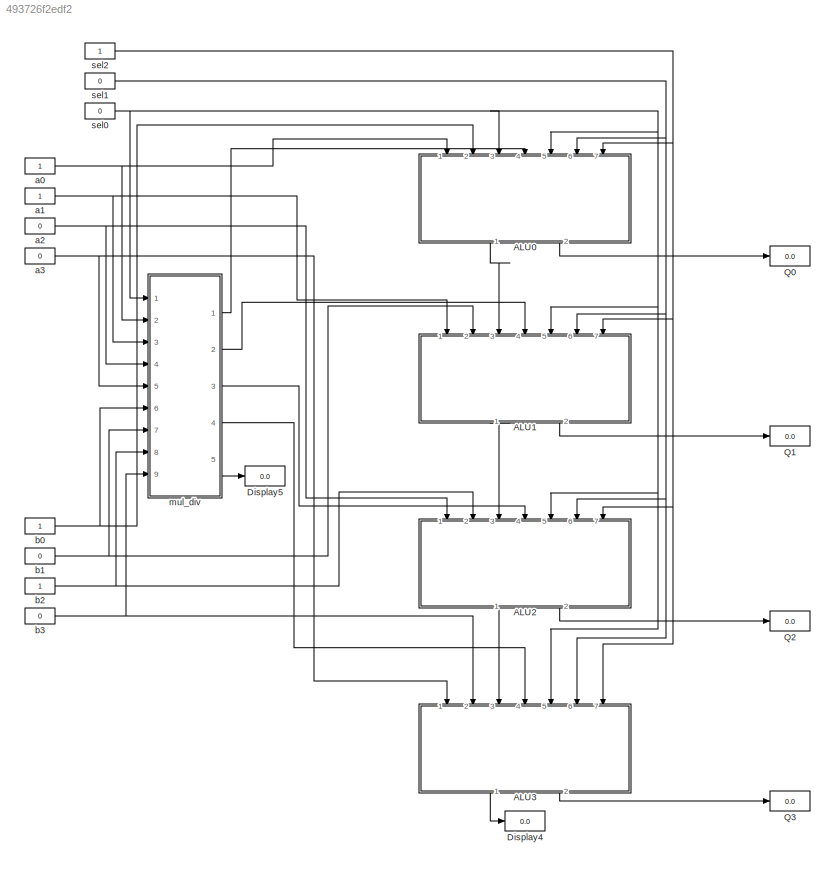
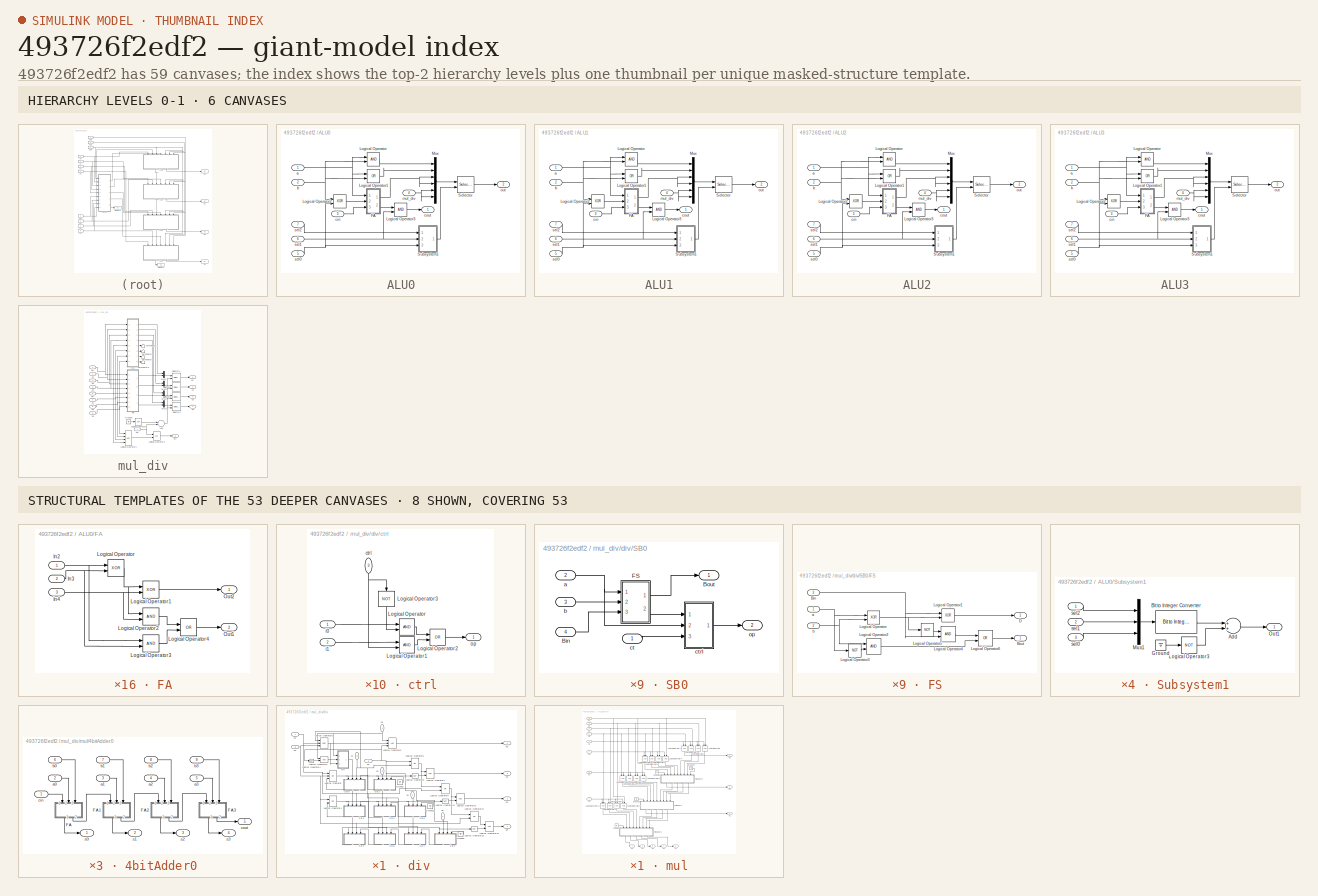
[diagram: thumbnail index - top-2 hierarchy levels (6 canvases) + 8 structural-template representatives of the remaining 53 canvases]
MODEL slx_493726f2edf2
KIND model
CONFIG AbsTol = auto
CONFIG EnableMultiTasking = off
CONFIG FixedStep = auto
CONFIG MaxStep = auto
CONFIG MinStep = auto
CONFIG RelTol = 1e-3
CONFIG SampleTimeConstraint = Unconstrained
CONFIG Solver = VariableStepAuto
CONFIG SolverName = VariableStepAuto
CONFIG StartTime = 0.0
CONFIG StopTime = 10.0
BLOCK [SubSystem] ALU0
  Ports = [7, 2]
  RequestExecContextInheritance = off
BLOCK [SubSystem] ALU0/FA
  Ports = [3, 2]
  RequestExecContextInheritance = off
BLOCK [Inport] ALU0/FA/In2
  IconDisplay = Port number
BLOCK [Inport] ALU0/FA/In3
  IconDisplay = Port number
  Port = 2
BLOCK [Inport] ALU0/FA/In4
  IconDisplay = Port number
  Port = 3
BLOCK [Logic] ALU0/FA/Logical Operator
  AllPortsSameDT = off
  IconShape = distinctive
  Operator = XOR
  OutDataTypeStr = boolean
  Ports = [2, 1]
BLOCK [Logic] ALU0/FA/Logical Operator1
  AllPortsSameDT = off
  IconShape = distinctive
  Operator = XOR
  OutDataTypeStr = boolean
  Ports = [2, 1]
BLOCK [Logic] ALU0/FA/Logical Operator2
  AllPortsSameDT = off
  IconShape = distinctive
  OutDataTypeStr = boolean
  Ports = [2, 1]
BLOCK [Logic] ALU0/FA/Logical Operator3
  AllPortsSameDT = off
  IconShape = distinctive
  OutDataTypeStr = boolean
  Ports = [2, 1]
BLOCK [Logic] ALU0/FA/Logical Operator4
  AllPortsSameDT = off
  IconShape = distinctive
  Operator = OR
  OutDataTypeStr = boolean
  Ports = [2, 1]
BLOCK [Outport] ALU0/FA/Out1
  IconDisplay = Port number
  Port = 2
BLOCK [Outport] ALU0/FA/Out2
  IconDisplay = Port number
BLOCK [Logic] ALU0/Logical Operator
  AllPortsSameDT = off
  IconShape = distinctive
  OutDataTypeStr = boolean
  Ports = [2, 1]
BLOCK [Logic] ALU0/Logical Operator1
  AllPortsSameDT = off
  IconShape = distinctive
  Operator = OR
  OutDataTypeStr = boolean
  Ports = [2, 1]
BLOCK [Logic] ALU0/Logical Operator2
  AllPortsSameDT = off
  IconShape = distinctive
  Operator = XOR
  OutDataTypeStr = boolean
  Ports = [2, 1]
BLOCK [Logic] ALU0/Logical Operator3
  AllPortsSameDT = off
  IconShape = distinctive
  OutDataTypeStr = boolean
  Ports = [2, 1]
BLOCK [Mux] ALU0/Mux
  DisplayOption = bar
  Inputs = 6
  Ports = [6, 1]
BLOCK [Selector] ALU0/Selector
  IndexOptions = Starting index (port)
  Indices = [1 3]
  InputPortWidth = 6
  OutputSizes = 1
  Ports = [2, 1]
BLOCK [SubSystem] ALU0/Subsystem1
  Ports = [3, 1]
  RequestExecContextInheritance = off
BLOCK [Sum] ALU0/Subsystem1/Add
  InputSameDT = off
  OutDataTypeStr = Inherit: Inherit via internal rule
  Ports = [2, 1]
  SaturateOnIntegerOverflow = off
BLOCK [Reference] ALU0/Subsystem1/Bit to Integer Converter  REF=commutil2/Bit to Integer
Converter
  Ports = [1, 1]
  SourceBlock = commutil2/Bit to Integer\nConverter
  SourceProductBaseCode = CM
  SourceProductName = Communications System Toolbox
  SourceType = Bit to Integer Converter
BLOCK [Ground] ALU0/Subsystem1/Ground
BLOCK [Logic] ALU0/Subsystem1/Logical Operator3
  AllPortsSameDT = off
  IconShape = distinctive
  Operator = NOT
  OutDataTypeStr = boolean
  Ports = [1, 1]
BLOCK [Mux] ALU0/Subsystem1/Mux1
  DisplayOption = bar
  Inputs = 3
  Ports = [3, 1]
BLOCK [Outport] ALU0/Subsystem1/Out1
  IconDisplay = Port number
BLOCK [Inport] ALU0/Subsystem1/sel0
  IconDisplay = Port number
  Port = 3
BLOCK [Inport] ALU0/Subsystem1/sel1
  IconDisplay = Port number
  Port = 2
BLOCK [Inport] ALU0/Subsystem1/sel2
  IconDisplay = Port number
BLOCK [Inport] ALU0/a
  IconDisplay = Port number
BLOCK [Inport] ALU0/b
  IconDisplay = Port number
  Port = 2
BLOCK [Inport] ALU0/cin
  IconDisplay = Port number
  Port = 3
BLOCK [Outport] ALU0/cout
  IconDisplay = Port number
BLOCK [Inport] ALU0/mul_div
  IconDisplay = Port number
  Port = 4
BLOCK [Outport] ALU0/out
  IconDisplay = Port number
  Port = 2
BLOCK [Inport] ALU0/sel0
  IconDisplay = Port number
  Port = 5
BLOCK [Inport] ALU0/sel1
  IconDisplay = Port number
  Port = 6
BLOCK [Inport] ALU0/sel2
  IconDisplay = Port number
  Port = 7
BLOCK [SubSystem] ALU1
  Ports = [7, 2]
  RequestExecContextInheritance = off
BLOCK [SubSystem] ALU1/FA
  Ports = [3, 2]
  RequestExecContextInheritance = off
BLOCK [Inport] ALU1/FA/In2
  IconDisplay = Port number
BLOCK [Inport] ALU1/FA/In3
  IconDisplay = Port number
  Port = 2
BLOCK [Inport] ALU1/FA/In4
  IconDisplay = Port number
  Port = 3
BLOCK [Logic] ALU1/FA/Logical Operator
  AllPortsSameDT = off
  IconShape = distinctive
  Operator = XOR
  OutDataTypeStr = boolean
  Ports = [2, 1]
BLOCK [Logic] ALU1/FA/Logical Operator1
  AllPortsSameDT = off
  IconShape = distinctive
  Operator = XOR
  OutDataTypeStr = boolean
  Ports = [2, 1]
BLOCK [Logic] ALU1/FA/Logical Operator2
  AllPortsSameDT = off
  IconShape = distinctive
  OutDataTypeStr = boolean
  Ports = [2, 1]
BLOCK [Logic] ALU1/FA/Logical Operator3
  AllPortsSameDT = off
  IconShape = distinctive
  OutDataTypeStr = boolean
  Ports = [2, 1]
BLOCK [Logic] ALU1/FA/Logical Operator4
  AllPortsSameDT = off
  IconShape = distinctive
  Operator = OR
  OutDataTypeStr = boolean
  Ports = [2, 1]
BLOCK [Outport] ALU1/FA/Out1
  IconDisplay = Port number
  Port = 2
BLOCK [Outport] ALU1/FA/Out2
  IconDisplay = Port number
BLOCK [Logic] ALU1/Logical Operator
  AllPortsSameDT = off
  IconShape = distinctive
  OutDataTypeStr = boolean
  Ports = [2, 1]
BLOCK [Logic] ALU1/Logical Operator1
  AllPortsSameDT = off
  IconShape = distinctive
  Operator = OR
  OutDataTypeStr = boolean
  Ports = [2, 1]
BLOCK [Logic] ALU1/Logical Operator2
  AllPortsSameDT = off
  IconShape = distinctive
  Operator = XOR
  OutDataTypeStr = boolean
  Ports = [2, 1]
BLOCK [Logic] ALU1/Logical Operator3
  AllPortsSameDT = off
  IconShape = distinctive
  OutDataTypeStr = boolean
  Ports = [2, 1]
BLOCK [Mux] ALU1/Mux
  DisplayOption = bar
  Inputs = 6
  Ports = [6, 1]
BLOCK [Selector] ALU1/Selector
  IndexOptions = Starting index (port)
  Indices = [1 3]
  InputPortWidth = 6
  OutputSizes = 1
  Ports = [2, 1]
BLOCK [SubSystem] ALU1/Subsystem1
  Ports = [3, 1]
  RequestExecContextInheritance = off
BLOCK [Sum] ALU1/Subsystem1/Add
  InputSameDT = off
  OutDataTypeStr = Inherit: Inherit via internal rule
  Ports = [2, 1]
  SaturateOnIntegerOverflow = off
BLOCK [Reference] ALU1/Subsystem1/Bit to Integer Converter  REF=commutil2/Bit to Integer
Converter
  Ports = [1, 1]
  SourceBlock = commutil2/Bit to Integer\nConverter
  SourceProductBaseCode = CM
  SourceProductName = Communications System Toolbox
  SourceType = Bit to Integer Converter
BLOCK [Ground] ALU1/Subsystem1/Ground
BLOCK [Logic] ALU1/Subsystem1/Logical Operator3
  AllPortsSameDT = off
  IconShape = distinctive
  Operator = NOT
  OutDataTypeStr = boolean
  Ports = [1, 1]
BLOCK [Mux] ALU1/Subsystem1/Mux1
  DisplayOption = bar
  Inputs = 3
  Ports = [3, 1]
BLOCK [Outport] ALU1/Subsystem1/Out1
  IconDisplay = Port number
BLOCK [Inport] ALU1/Subsystem1/sel0
  IconDisplay = Port number
  Port = 3
BLOCK [Inport] ALU1/Subsystem1/sel1
  IconDisplay = Port number
  Port = 2
BLOCK [Inport] ALU1/Subsystem1/sel2
  IconDisplay = Port number
BLOCK [Inport] ALU1/a
  IconDisplay = Port number
BLOCK [Inport] ALU1/b
  IconDisplay = Port number
  Port = 2
BLOCK [Inport] ALU1/cin
  IconDisplay = Port number
  Port = 3
BLOCK [Outport] ALU1/cout
  IconDisplay = Port number
BLOCK [Inport] ALU1/mul_div
  IconDisplay = Port number
  Port = 4
BLOCK [Outport] ALU1/out
  IconDisplay = Port number
  Port = 2
BLOCK [Inport] ALU1/sel0
  IconDisplay = Port number
  Port = 5
BLOCK [Inport] ALU1/sel1
  IconDisplay = Port number
  Port = 6
BLOCK [Inport] ALU1/sel2
  IconDisplay = Port number
  Port = 7
BLOCK [SubSystem] ALU2
  Ports = [7, 2]
  RequestExecContextInheritance = off
BLOCK [SubSystem] ALU2/FA
  Ports = [3, 2]
  RequestExecContextInheritance = off
BLOCK [Inport] ALU2/FA/In2
  IconDisplay = Port number
BLOCK [Inport] ALU2/FA/In3
  IconDisplay = Port number
  Port = 2
BLOCK [Inport] ALU2/FA/In4
  IconDisplay = Port number
  Port = 3
BLOCK [Logic] ALU2/FA/Logical Operator
  AllPortsSameDT = off
  IconShape = distinctive
  Operator = XOR
  OutDataTypeStr = boolean
  Ports = [2, 1]
BLOCK [Logic] ALU2/FA/Logical Operator1
  AllPortsSameDT = off
  IconShape = distinctive
  Operator = XOR
  OutDataTypeStr = boolean
  Ports = [2, 1]
BLOCK [Logic] ALU2/FA/Logical Operator2
  AllPortsSameDT = off
  IconShape = distinctive
  OutDataTypeStr = boolean
  Ports = [2, 1]
BLOCK [Logic] ALU2/FA/Logical Operator3
  AllPortsSameDT = off
  IconShape = distinctive
  OutDataTypeStr = boolean
  Ports = [2, 1]
BLOCK [Logic] ALU2/FA/Logical Operator4
  AllPortsSameDT = off
  IconShape = distinctive
  Operator = OR
  OutDataTypeStr = boolean
  Ports = [2, 1]
BLOCK [Outport] ALU2/FA/Out1
  IconDisplay = Port number
  Port = 2
BLOCK [Outport] ALU2/FA/Out2
  IconDisplay = Port number
BLOCK [Logic] ALU2/Logical Operator
  AllPortsSameDT = off
  IconShape = distinctive
  OutDataTypeStr = boolean
  Ports = [2, 1]
BLOCK [Logic] ALU2/Logical Operator1
  AllPortsSameDT = off
  IconShape = distinctive
  Operator = OR
  OutDataTypeStr = boolean
  Ports = [2, 1]
BLOCK [Logic] ALU2/Logical Operator2
  AllPortsSameDT = off
  IconShape = distinctive
  Operator = XOR
  OutDataTypeStr = boolean
  Ports = [2, 1]
BLOCK [Logic] ALU2/Logical Operator3
  AllPortsSameDT = off
  IconShape = distinctive
  OutDataTypeStr = boolean
  Ports = [2, 1]
BLOCK [Mux] ALU2/Mux
  DisplayOption = bar
  Inputs = 6
  Ports = [6, 1]
BLOCK [Selector] ALU2/Selector
  IndexOptions = Starting index (port)
  Indices = [1 3]
  InputPortWidth = 6
  OutputSizes = 1
  Ports = [2, 1]
BLOCK [SubSystem] ALU2/Subsystem1
  Ports = [3, 1]
  RequestExecContextInheritance = off
BLOCK [Sum] ALU2/Subsystem1/Add
  InputSameDT = off
  OutDataTypeStr = Inherit: Inherit via internal rule
  Ports = [2, 1]
  SaturateOnIntegerOverflow = off
BLOCK [Reference] ALU2/Subsystem1/Bit to Integer Converter  REF=commutil2/Bit to Integer
Converter
  Ports = [1, 1]
  SourceBlock = commutil2/Bit to Integer\nConverter
  SourceProductBaseCode = CM
  SourceProductName = Communications System Toolbox
  SourceType = Bit to Integer Converter
BLOCK [Ground] ALU2/Subsystem1/Ground
BLOCK [Logic] ALU2/Subsystem1/Logical Operator3
  AllPortsSameDT = off
  IconShape = distinctive
  Operator = NOT
  OutDataTypeStr = boolean
  Ports = [1, 1]
BLOCK [Mux] ALU2/Subsystem1/Mux1
  DisplayOption = bar
  Inputs = 3
  Ports = [3, 1]
BLOCK [Outport] ALU2/Subsystem1/Out1
  IconDisplay = Port number
BLOCK [Inport] ALU2/Subsystem1/sel0
  IconDisplay = Port number
  Port = 3
BLOCK [Inport] ALU2/Subsystem1/sel1
  IconDisplay = Port number
  Port = 2
BLOCK [Inport] ALU2/Subsystem1/sel2
  IconDisplay = Port number
BLOCK [Inport] ALU2/a
  IconDisplay = Port number
BLOCK [Inport] ALU2/b
  IconDisplay = Port number
  Port = 2
BLOCK [Inport] ALU2/cin
  IconDisplay = Port number
  Port = 3
BLOCK [Outport] ALU2/cout
  IconDisplay = Port number
BLOCK [Inport] ALU2/mul_div
  IconDisplay = Port number
  Port = 4
BLOCK [Outport] ALU2/out
  IconDisplay = Port number
  Port = 2
BLOCK [Inport] ALU2/sel0
  IconDisplay = Port number
  Port = 5
BLOCK [Inport] ALU2/sel1
  IconDisplay = Port number
  Port = 6
BLOCK [Inport] ALU2/sel2
  IconDisplay = Port number
  Port = 7
BLOCK [SubSystem] ALU3
  Ports = [7, 2]
  RequestExecContextInheritance = off
BLOCK [SubSystem] ALU3/FA
  Ports = [3, 2]
  RequestExecContextInheritance = off
BLOCK [Inport] ALU3/FA/In2
  IconDisplay = Port number
BLOCK [Inport] ALU3/FA/In3
  IconDisplay = Port number
  Port = 2
BLOCK [Inport] ALU3/FA/In4
  IconDisplay = Port number
  Port = 3
BLOCK [Logic] ALU3/FA/Logical Operator
  AllPortsSameDT = off
  IconShape = distinctive
  Operator = XOR
  OutDataTypeStr = boolean
  Ports = [2, 1]
BLOCK [Logic] ALU3/FA/Logical Operator1
  AllPortsSameDT = off
  IconShape = distinctive
  Operator = XOR
  OutDataTypeStr = boolean
  Ports = [2, 1]
BLOCK [Logic] ALU3/FA/Logical Operator2
  AllPortsSameDT = off
  IconShape = distinctive
  OutDataTypeStr = boolean
  Ports = [2, 1]
BLOCK [Logic] ALU3/FA/Logical Operator3
  AllPortsSameDT = off
  IconShape = distinctive
  OutDataTypeStr = boolean
  Ports = [2, 1]
BLOCK [Logic] ALU3/FA/Logical Operator4
  AllPortsSameDT = off
  IconShape = distinctive
  Operator = OR
  OutDataTypeStr = boolean
  Ports = [2, 1]
BLOCK [Outport] ALU3/FA/Out1
  IconDisplay = Port number
  Port = 2
BLOCK [Outport] ALU3/FA/Out2
  IconDisplay = Port number
BLOCK [Logic] ALU3/Logical Operator
  AllPortsSameDT = off
  IconShape = distinctive
  OutDataTypeStr = boolean
  Ports = [2, 1]
BLOCK [Logic] ALU3/Logical Operator1
  AllPortsSameDT = off
  IconShape = distinctive
  Operator = OR
  OutDataTypeStr = boolean
  Ports = [2, 1]
BLOCK [Logic] ALU3/Logical Operator2
  AllPortsSameDT = off
  IconShape = distinctive
  Operator = XOR
  OutDataTypeStr = boolean
  Ports = [2, 1]
BLOCK [Logic] ALU3/Logical Operator3
  AllPortsSameDT = off
  IconShape = distinctive
  OutDataTypeStr = boolean
  Ports = [2, 1]
BLOCK [Mux] ALU3/Mux
  DisplayOption = bar
  Inputs = 6
  Ports = [6, 1]
BLOCK [Selector] ALU3/Selector
  IndexOptions = Starting index (port)
  Indices = [1 3]
  InputPortWidth = 6
  OutputSizes = 1
  Ports = [2, 1]
BLOCK [SubSystem] ALU3/Subsystem1
  Ports = [3, 1]
  RequestExecContextInheritance = off
BLOCK [Sum] ALU3/Subsystem1/Add
  InputSameDT = off
  OutDataTypeStr = Inherit: Inherit via internal rule
  Ports = [2, 1]
  SaturateOnIntegerOverflow = off
BLOCK [Reference] ALU3/Subsystem1/Bit to Integer Converter  REF=commutil2/Bit to Integer
Converter
  Ports = [1, 1]
  SourceBlock = commutil2/Bit to Integer\nConverter
  SourceProductBaseCode = CM
  SourceProductName = Communications System Toolbox
  SourceType = Bit to Integer Converter
BLOCK [Ground] ALU3/Subsystem1/Ground
BLOCK [Logic] ALU3/Subsystem1/Logical Operator3
  AllPortsSameDT = off
  IconShape = distinctive
  Operator = NOT
  OutDataTypeStr = boolean
  Ports = [1, 1]
BLOCK [Mux] ALU3/Subsystem1/Mux1
  DisplayOption = bar
  Inputs = 3
  Ports = [3, 1]
BLOCK [Outport] ALU3/Subsystem1/Out1
  IconDisplay = Port number
BLOCK [Inport] ALU3/Subsystem1/sel0
  IconDisplay = Port number
  Port = 3
BLOCK [Inport] ALU3/Subsystem1/sel1
  IconDisplay = Port number
  Port = 2
BLOCK [Inport] ALU3/Subsystem1/sel2
  IconDisplay = Port number
BLOCK [Inport] ALU3/a
  IconDisplay = Port number
BLOCK [Inport] ALU3/b
  IconDisplay = Port number
  Port = 2
BLOCK [Inport] ALU3/cin
  IconDisplay = Port number
  Port = 3
BLOCK [Outport] ALU3/cout
  IconDisplay = Port number
BLOCK [Inport] ALU3/mul_div
  IconDisplay = Port number
  Port = 4
BLOCK [Outport] ALU3/out
  IconDisplay = Port number
  Port = 2
BLOCK [Inport] ALU3/sel0
  IconDisplay = Port number
  Port = 5
BLOCK [Inport] ALU3/sel1
  IconDisplay = Port number
  Port = 6
BLOCK [Inport] ALU3/sel2
  IconDisplay = Port number
  Port = 7
BLOCK [Display] Display4
  Decimation = 1
  Ports = [1]
BLOCK [Display] Display5
  Decimation = 1
  Ports = [1]
BLOCK [Display] Q0
  Decimation = 1
  Ports = [1]
BLOCK [Display] Q1
  Decimation = 1
  Ports = [1]
BLOCK [Display] Q2
  Decimation = 1
  Ports = [1]
BLOCK [Display] Q3
  Decimation = 1
  Ports = [1]
BLOCK [Constant] a0
BLOCK [Constant] a1
BLOCK [Constant] a2
  Value = 0
BLOCK [Constant] a3
  Value = 0
BLOCK [Constant] b0
BLOCK [Constant] b1
  Value = 0
BLOCK [Constant] b2
BLOCK [Constant] b3
  Value = 0
BLOCK [SubSystem] mul_div
  Ports = [9, 5]
  RequestExecContextInheritance = off
BLOCK [Sum] mul_div/Add
  InputSameDT = off
  OutDataTypeStr = Inherit: Inherit via internal rule
  Ports = [2, 1]
  SaturateOnIntegerOverflow = off
BLOCK [Ground] mul_div/Ground
BLOCK [Logic] mul_div/Logical Operator
  AllPortsSameDT = off
  IconShape = distinctive
  Operator = NOT
  OutDataTypeStr = boolean
  Ports = [1, 1]
BLOCK [Logic] mul_div/Logical Operator1
  AllPortsSameDT = off
  IconShape = distinctive
  Inputs = 4
  Operator = NOR
  OutDataTypeStr = boolean
  Ports = [4, 1]
BLOCK [Logic] mul_div/Logical Operator2
  AllPortsSameDT = off
  IconShape = distinctive
  OutDataTypeStr = boolean
  Ports = [2, 1]
BLOCK [Mux] mul_div/Mux1
  DisplayOption = bar
  Inputs = 2
  Ports = [2, 1]
BLOCK [Mux] mul_div/Mux2
  DisplayOption = bar
  Inputs = 2
  Ports = [2, 1]
BLOCK [Mux] mul_div/Mux3
  DisplayOption = bar
  Inputs = 2
  Ports = [2, 1]
BLOCK [Mux] mul_div/Mux4
  DisplayOption = bar
  Inputs = 2
  Ports = [2, 1]
BLOCK [Selector] mul_div/Selector1
  IndexOptions = Starting index (port)
  Indices = [1 3]
  InputPortWidth = 2
  OutputSizes = 1
  Ports = [2, 1]
BLOCK [Selector] mul_div/Selector2
  IndexOptions = Starting index (port)
  Indices = [1 3]
  InputPortWidth = 2
  OutputSizes = 1
  Ports = [2, 1]
BLOCK [Selector] mul_div/Selector3
  IndexOptions = Starting index (port)
  Indices = [1 3]
  InputPortWidth = 2
  OutputSizes = 1
  Ports = [2, 1]
BLOCK [Selector] mul_div/Selector4
  IndexOptions = Starting index (port)
  Indices = [1 3]
  InputPortWidth = 2
  OutputSizes = 1
  Ports = [2, 1]
BLOCK [Terminator] mul_div/Terminator
BLOCK [Terminator] mul_div/Terminator1
BLOCK [Terminator] mul_div/Terminator2
BLOCK [Terminator] mul_div/Terminator3
BLOCK [Inport] mul_div/a0
  IconDisplay = Port number
  Port = 2
BLOCK [Inport] mul_div/a1
  IconDisplay = Port number
  Port = 3
BLOCK [Inport] mul_div/a2
  IconDisplay = Port number
  Port = 4
BLOCK [Inport] mul_div/a3
  IconDisplay = Port number
  Port = 5
BLOCK [Inport] mul_div/b0
  IconDisplay = Port number
  Port = 6
BLOCK [Inport] mul_div/b1
  IconDisplay = Port number
  Port = 7
BLOCK [Inport] mul_div/b2
  IconDisplay = Port number
  Port = 8
BLOCK [Inport] mul_div/b3
  IconDisplay = Port number
  Port = 9
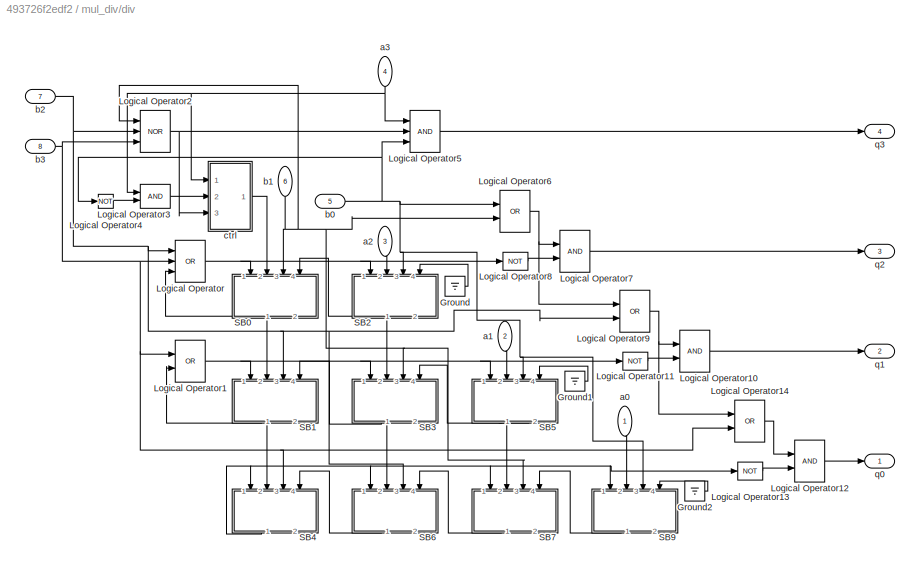
BLOCK [SubSystem] mul_div/div
  Ports = [8, 4]
  RequestExecContextInheritance = off
BLOCK [Ground] mul_div/div/Ground
BLOCK [Ground] mul_div/div/Ground1
BLOCK [Ground] mul_div/div/Ground2
BLOCK [Logic] mul_div/div/Logical Operator
  AllPortsSameDT = off
  IconShape = distinctive
  Inputs = 3
  Operator = OR
  OutDataTypeStr = boolean
  Ports = [3, 1]
BLOCK [Logic] mul_div/div/Logical Operator1
  AllPortsSameDT = off
  IconShape = distinctive
  Operator = OR
  OutDataTypeStr = boolean
  Ports = [2, 1]
BLOCK [Logic] mul_div/div/Logical Operator10
  AllPortsSameDT = off
  IconShape = distinctive
  OutDataTypeStr = boolean
  Ports = [2, 1]
BLOCK [Logic] mul_div/div/Logical Operator11
  AllPortsSameDT = off
  IconShape = distinctive
  Operator = NOT
  OutDataTypeStr = boolean
  Ports = [1, 1]
BLOCK [Logic] mul_div/div/Logical Operator12
  AllPortsSameDT = off
  IconShape = distinctive
  OutDataTypeStr = boolean
  Ports = [2, 1]
BLOCK [Logic] mul_div/div/Logical Operator13
  AllPortsSameDT = off
  IconShape = distinctive
  Operator = NOT
  OutDataTypeStr = boolean
  Ports = [1, 1]
BLOCK [Logic] mul_div/div/Logical Operator14
  AllPortsSameDT = off
  IconShape = distinctive
  Operator = OR
  OutDataTypeStr = boolean
  Ports = [2, 1]
BLOCK [Logic] mul_div/div/Logical Operator2
  AllPortsSameDT = off
  IconShape = distinctive
  Inputs = 3
  Operator = NOR
  OutDataTypeStr = boolean
  Ports = [3, 1]
BLOCK [Logic] mul_div/div/Logical Operator3
  AllPortsSameDT = off
  IconShape = distinctive
  OutDataTypeStr = boolean
  Ports = [2, 1]
BLOCK [Logic] mul_div/div/Logical Operator4
  AllPortsSameDT = off
  IconShape = distinctive
  Operator = NOT
  OutDataTypeStr = boolean
  Ports = [1, 1]
BLOCK [Logic] mul_div/div/Logical Operator5
  AllPortsSameDT = off
  IconShape = distinctive
  Inputs = 3
  OutDataTypeStr = boolean
  Ports = [3, 1]
BLOCK [Logic] mul_div/div/Logical Operator6
  AllPortsSameDT = off
  IconShape = distinctive
  Operator = OR
  OutDataTypeStr = boolean
  Ports = [2, 1]
BLOCK [Logic] mul_div/div/Logical Operator7
  AllPortsSameDT = off
  IconShape = distinctive
  OutDataTypeStr = boolean
  Ports = [2, 1]
BLOCK [Logic] mul_div/div/Logical Operator8
  AllPortsSameDT = off
  IconShape = distinctive
  Operator = NOT
  OutDataTypeStr = boolean
  Ports = [1, 1]
BLOCK [Logic] mul_div/div/Logical Operator9
  AllPortsSameDT = off
  IconShape = distinctive
  Operator = OR
  OutDataTypeStr = boolean
  Ports = [2, 1]
BLOCK [SubSystem] mul_div/div/SB0
  Ports = [4, 2]
  RequestExecContextInheritance = off
BLOCK [Inport] mul_div/div/SB0/Bin
  IconDisplay = Port number
  Port = 4
BLOCK [Outport] mul_div/div/SB0/Bout
  IconDisplay = Port number
BLOCK [SubSystem] mul_div/div/SB0/FS
  Ports = [3, 2]
  RequestExecContextInheritance = off
BLOCK [Inport] mul_div/div/SB0/FS/Bin
  IconDisplay = Port number
  Port = 3
BLOCK [Outport] mul_div/div/SB0/FS/Bout
  IconDisplay = Port number
BLOCK [Outport] mul_div/div/SB0/FS/D
  IconDisplay = Port number
  Port = 2
BLOCK [Logic] mul_div/div/SB0/FS/Logical Operator
  AllPortsSameDT = off
  IconShape = distinctive
  Operator = XOR
  OutDataTypeStr = boolean
  Ports = [2, 1]
BLOCK [Logic] mul_div/div/SB0/FS/Logical Operator1
  AllPortsSameDT = off
  IconShape = distinctive
  Operator = XOR
  OutDataTypeStr = boolean
  Ports = [2, 1]
BLOCK [Logic] mul_div/div/SB0/FS/Logical Operator2
  AllPortsSameDT = off
  IconShape = distinctive
  OutDataTypeStr = boolean
  Ports = [2, 1]
BLOCK [Logic] mul_div/div/SB0/FS/Logical Operator3
  AllPortsSameDT = off
  IconShape = distinctive
  Operator = NOT
  OutDataTypeStr = boolean
  Ports = [1, 1]
BLOCK [Logic] mul_div/div/SB0/FS/Logical Operator4
  AllPortsSameDT = off
  IconShape = distinctive
  OutDataTypeStr = boolean
  Ports = [2, 1]
BLOCK [Logic] mul_div/div/SB0/FS/Logical Operator5
  AllPortsSameDT = off
  IconShape = distinctive
  Operator = NOT
  OutDataTypeStr = boolean
  Ports = [1, 1]
BLOCK [Logic] mul_div/div/SB0/FS/Logical Operator6
  AllPortsSameDT = off
  IconShape = distinctive
  Operator = OR
  OutDataTypeStr = boolean
  Ports = [2, 1]
BLOCK [Inport] mul_div/div/SB0/FS/a
  IconDisplay = Port number
BLOCK [Inport] mul_div/div/SB0/FS/b
  IconDisplay = Port number
  Port = 2
BLOCK [Inport] mul_div/div/SB0/a
  IconDisplay = Port number
  Port = 2
BLOCK [Inport] mul_div/div/SB0/b
  IconDisplay = Port number
  Port = 3
BLOCK [Inport] mul_div/div/SB0/ct
  IconDisplay = Port number
BLOCK [SubSystem] mul_div/div/SB0/ctrl
  Ports = [3, 1]
  RequestExecContextInheritance = off
BLOCK [Logic] mul_div/div/SB0/ctrl/Logical Operator
  AllPortsSameDT = off
  IconShape = distinctive
  OutDataTypeStr = boolean
  Ports = [2, 1]
BLOCK [Logic] mul_div/div/SB0/ctrl/Logical Operator1
  AllPortsSameDT = off
  IconShape = distinctive
  OutDataTypeStr = boolean
  Ports = [2, 1]
BLOCK [Logic] mul_div/div/SB0/ctrl/Logical Operator2
  AllPortsSameDT = off
  IconShape = distinctive
  Operator = OR
  OutDataTypeStr = boolean
  Ports = [2, 1]
BLOCK [Logic] mul_div/div/SB0/ctrl/Logical Operator3
  AllPortsSameDT = off
  IconShape = distinctive
  Operator = NOT
  OutDataTypeStr = boolean
  Ports = [1, 1]
BLOCK [Inport] mul_div/div/SB0/ctrl/ctrl
  IconDisplay = Port number
  Port = 3
BLOCK [Inport] mul_div/div/SB0/ctrl/i0
  IconDisplay = Port number
BLOCK [Inport] mul_div/div/SB0/ctrl/i1
  IconDisplay = Port number
  Port = 2
BLOCK [Outport] mul_div/div/SB0/ctrl/op
  IconDisplay = Port number
BLOCK [Outport] mul_div/div/SB0/op
  IconDisplay = Port number
  Port = 2
BLOCK [SubSystem] mul_div/div/SB1
  Ports = [4, 2]
  RequestExecContextInheritance = off
BLOCK [Inport] mul_div/div/SB1/Bin
  IconDisplay = Port number
  Port = 4
BLOCK [Outport] mul_div/div/SB1/Bout
  IconDisplay = Port number
BLOCK [SubSystem] mul_div/div/SB1/FS
  Ports = [3, 2]
  RequestExecContextInheritance = off
BLOCK [Inport] mul_div/div/SB1/FS/Bin
  IconDisplay = Port number
  Port = 3
BLOCK [Outport] mul_div/div/SB1/FS/Bout
  IconDisplay = Port number
BLOCK [Outport] mul_div/div/SB1/FS/D
  IconDisplay = Port number
  Port = 2
BLOCK [Logic] mul_div/div/SB1/FS/Logical Operator
  AllPortsSameDT = off
  IconShape = distinctive
  Operator = XOR
  OutDataTypeStr = boolean
  Ports = [2, 1]
BLOCK [Logic] mul_div/div/SB1/FS/Logical Operator1
  AllPortsSameDT = off
  IconShape = distinctive
  Operator = XOR
  OutDataTypeStr = boolean
  Ports = [2, 1]
BLOCK [Logic] mul_div/div/SB1/FS/Logical Operator2
  AllPortsSameDT = off
  IconShape = distinctive
  OutDataTypeStr = boolean
  Ports = [2, 1]
BLOCK [Logic] mul_div/div/SB1/FS/Logical Operator3
  AllPortsSameDT = off
  IconShape = distinctive
  Operator = NOT
  OutDataTypeStr = boolean
  Ports = [1, 1]
BLOCK [Logic] mul_div/div/SB1/FS/Logical Operator4
  AllPortsSameDT = off
  IconShape = distinctive
  OutDataTypeStr = boolean
  Ports = [2, 1]
BLOCK [Logic] mul_div/div/SB1/FS/Logical Operator5
  AllPortsSameDT = off
  IconShape = distinctive
  Operator = NOT
  OutDataTypeStr = boolean
  Ports = [1, 1]
BLOCK [Logic] mul_div/div/SB1/FS/Logical Operator6
  AllPortsSameDT = off
  IconShape = distinctive
  Operator = OR
  OutDataTypeStr = boolean
  Ports = [2, 1]
BLOCK [Inport] mul_div/div/SB1/FS/a
  IconDisplay = Port number
BLOCK [Inport] mul_div/div/SB1/FS/b
  IconDisplay = Port number
  Port = 2
BLOCK [Inport] mul_div/div/SB1/a
  IconDisplay = Port number
  Port = 2
BLOCK [Inport] mul_div/div/SB1/b
  IconDisplay = Port number
  Port = 3
BLOCK [Inport] mul_div/div/SB1/ct
  IconDisplay = Port number
BLOCK [SubSystem] mul_div/div/SB1/ctrl
  Ports = [3, 1]
  RequestExecContextInheritance = off
BLOCK [Logic] mul_div/div/SB1/ctrl/Logical Operator
  AllPortsSameDT = off
  IconShape = distinctive
  OutDataTypeStr = boolean
  Ports = [2, 1]
BLOCK [Logic] mul_div/div/SB1/ctrl/Logical Operator1
  AllPortsSameDT = off
  IconShape = distinctive
  OutDataTypeStr = boolean
  Ports = [2, 1]
BLOCK [Logic] mul_div/div/SB1/ctrl/Logical Operator2
  AllPortsSameDT = off
  IconShape = distinctive
  Operator = OR
  OutDataTypeStr = boolean
  Ports = [2, 1]
BLOCK [Logic] mul_div/div/SB1/ctrl/Logical Operator3
  AllPortsSameDT = off
  IconShape = distinctive
  Operator = NOT
  OutDataTypeStr = boolean
  Ports = [1, 1]
BLOCK [Inport] mul_div/div/SB1/ctrl/ctrl
  IconDisplay = Port number
  Port = 3
BLOCK [Inport] mul_div/div/SB1/ctrl/i0
  IconDisplay = Port number
BLOCK [Inport] mul_div/div/SB1/ctrl/i1
  IconDisplay = Port number
  Port = 2
BLOCK [Outport] mul_div/div/SB1/ctrl/op
  IconDisplay = Port number
BLOCK [Outport] mul_div/div/SB1/op
  IconDisplay = Port number
  Port = 2
BLOCK [SubSystem] mul_div/div/SB2
  Ports = [4, 2]
  RequestExecContextInheritance = off
BLOCK [Inport] mul_div/div/SB2/Bin
  IconDisplay = Port number
  Port = 4
BLOCK [Outport] mul_div/div/SB2/Bout
  IconDisplay = Port number
BLOCK [SubSystem] mul_div/div/SB2/FS
  Ports = [3, 2]
  RequestExecContextInheritance = off
BLOCK [Inport] mul_div/div/SB2/FS/Bin
  IconDisplay = Port number
  Port = 3
BLOCK [Outport] mul_div/div/SB2/FS/Bout
  IconDisplay = Port number
BLOCK [Outport] mul_div/div/SB2/FS/D
  IconDisplay = Port number
  Port = 2
BLOCK [Logic] mul_div/div/SB2/FS/Logical Operator
  AllPortsSameDT = off
  IconShape = distinctive
  Operator = XOR
  OutDataTypeStr = boolean
  Ports = [2, 1]
BLOCK [Logic] mul_div/div/SB2/FS/Logical Operator1
  AllPortsSameDT = off
  IconShape = distinctive
  Operator = XOR
  OutDataTypeStr = boolean
  Ports = [2, 1]
BLOCK [Logic] mul_div/div/SB2/FS/Logical Operator2
  AllPortsSameDT = off
  IconShape = distinctive
  OutDataTypeStr = boolean
  Ports = [2, 1]
BLOCK [Logic] mul_div/div/SB2/FS/Logical Operator3
  AllPortsSameDT = off
  IconShape = distinctive
  Operator = NOT
  OutDataTypeStr = boolean
  Ports = [1, 1]
BLOCK [Logic] mul_div/div/SB2/FS/Logical Operator4
  AllPortsSameDT = off
  IconShape = distinctive
  OutDataTypeStr = boolean
  Ports = [2, 1]
BLOCK [Logic] mul_div/div/SB2/FS/Logical Operator5
  AllPortsSameDT = off
  IconShape = distinctive
  Operator = NOT
  OutDataTypeStr = boolean
  Ports = [1, 1]
BLOCK [Logic] mul_div/div/SB2/FS/Logical Operator6
  AllPortsSameDT = off
  IconShape = distinctive
  Operator = OR
  OutDataTypeStr = boolean
  Ports = [2, 1]
BLOCK [Inport] mul_div/div/SB2/FS/a
  IconDisplay = Port number
BLOCK [Inport] mul_div/div/SB2/FS/b
  IconDisplay = Port number
  Port = 2
BLOCK [Inport] mul_div/div/SB2/a
  IconDisplay = Port number
  Port = 2
BLOCK [Inport] mul_div/div/SB2/b
  IconDisplay = Port number
  Port = 3
BLOCK [Inport] mul_div/div/SB2/ct
  IconDisplay = Port number
BLOCK [SubSystem] mul_div/div/SB2/ctrl
  Ports = [3, 1]
  RequestExecContextInheritance = off
BLOCK [Logic] mul_div/div/SB2/ctrl/Logical Operator
  AllPortsSameDT = off
  IconShape = distinctive
  OutDataTypeStr = boolean
  Ports = [2, 1]
BLOCK [Logic] mul_div/div/SB2/ctrl/Logical Operator1
  AllPortsSameDT = off
  IconShape = distinctive
  OutDataTypeStr = boolean
  Ports = [2, 1]
BLOCK [Logic] mul_div/div/SB2/ctrl/Logical Operator2
  AllPortsSameDT = off
  IconShape = distinctive
  Operator = OR
  OutDataTypeStr = boolean
  Ports = [2, 1]
BLOCK [Logic] mul_div/div/SB2/ctrl/Logical Operator3
  AllPortsSameDT = off
  IconShape = distinctive
  Operator = NOT
  OutDataTypeStr = boolean
  Ports = [1, 1]
BLOCK [Inport] mul_div/div/SB2/ctrl/ctrl
  IconDisplay = Port number
  Port = 3
BLOCK [Inport] mul_div/div/SB2/ctrl/i0
  IconDisplay = Port number
BLOCK [Inport] mul_div/div/SB2/ctrl/i1
  IconDisplay = Port number
  Port = 2
BLOCK [Outport] mul_div/div/SB2/ctrl/op
  IconDisplay = Port number
BLOCK [Outport] mul_div/div/SB2/op
  IconDisplay = Port number
  Port = 2
BLOCK [SubSystem] mul_div/div/SB3
  Ports = [4, 2]
  RequestExecContextInheritance = off
BLOCK [Inport] mul_div/div/SB3/Bin
  IconDisplay = Port number
  Port = 4
BLOCK [Outport] mul_div/div/SB3/Bout
  IconDisplay = Port number
BLOCK [SubSystem] mul_div/div/SB3/FS
  Ports = [3, 2]
  RequestExecContextInheritance = off
BLOCK [Inport] mul_div/div/SB3/FS/Bin
  IconDisplay = Port number
  Port = 3
BLOCK [Outport] mul_div/div/SB3/FS/Bout
  IconDisplay = Port number
BLOCK [Outport] mul_div/div/SB3/FS/D
  IconDisplay = Port number
  Port = 2
BLOCK [Logic] mul_div/div/SB3/FS/Logical Operator
  AllPortsSameDT = off
  IconShape = distinctive
  Operator = XOR
  OutDataTypeStr = boolean
  Ports = [2, 1]
BLOCK [Logic] mul_div/div/SB3/FS/Logical Operator1
  AllPortsSameDT = off
  IconShape = distinctive
  Operator = XOR
  OutDataTypeStr = boolean
  Ports = [2, 1]
BLOCK [Logic] mul_div/div/SB3/FS/Logical Operator2
  AllPortsSameDT = off
  IconShape = distinctive
  OutDataTypeStr = boolean
  Ports = [2, 1]
BLOCK [Logic] mul_div/div/SB3/FS/Logical Operator3
  AllPortsSameDT = off
  IconShape = distinctive
  Operator = NOT
  OutDataTypeStr = boolean
  Ports = [1, 1]
BLOCK [Logic] mul_div/div/SB3/FS/Logical Operator4
  AllPortsSameDT = off
  IconShape = distinctive
  OutDataTypeStr = boolean
  Ports = [2, 1]
BLOCK [Logic] mul_div/div/SB3/FS/Logical Operator5
  AllPortsSameDT = off
  IconShape = distinctive
  Operator = NOT
  OutDataTypeStr = boolean
  Ports = [1, 1]
BLOCK [Logic] mul_div/div/SB3/FS/Logical Operator6
  AllPortsSameDT = off
  IconShape = distinctive
  Operator = OR
  OutDataTypeStr = boolean
  Ports = [2, 1]
BLOCK [Inport] mul_div/div/SB3/FS/a
  IconDisplay = Port number
BLOCK [Inport] mul_div/div/SB3/FS/b
  IconDisplay = Port number
  Port = 2
BLOCK [Inport] mul_div/div/SB3/a
  IconDisplay = Port number
  Port = 2
BLOCK [Inport] mul_div/div/SB3/b
  IconDisplay = Port number
  Port = 3
BLOCK [Inport] mul_div/div/SB3/ct
  IconDisplay = Port number
BLOCK [SubSystem] mul_div/div/SB3/ctrl
  Ports = [3, 1]
  RequestExecContextInheritance = off
BLOCK [Logic] mul_div/div/SB3/ctrl/Logical Operator
  AllPortsSameDT = off
  IconShape = distinctive
  OutDataTypeStr = boolean
  Ports = [2, 1]
BLOCK [Logic] mul_div/div/SB3/ctrl/Logical Operator1
  AllPortsSameDT = off
  IconShape = distinctive
  OutDataTypeStr = boolean
  Ports = [2, 1]
BLOCK [Logic] mul_div/div/SB3/ctrl/Logical Operator2
  AllPortsSameDT = off
  IconShape = distinctive
  Operator = OR
  OutDataTypeStr = boolean
  Ports = [2, 1]
BLOCK [Logic] mul_div/div/SB3/ctrl/Logical Operator3
  AllPortsSameDT = off
  IconShape = distinctive
  Operator = NOT
  OutDataTypeStr = boolean
  Ports = [1, 1]
BLOCK [Inport] mul_div/div/SB3/ctrl/ctrl
  IconDisplay = Port number
  Port = 3
BLOCK [Inport] mul_div/div/SB3/ctrl/i0
  IconDisplay = Port number
BLOCK [Inport] mul_div/div/SB3/ctrl/i1
  IconDisplay = Port number
  Port = 2
BLOCK [Outport] mul_div/div/SB3/ctrl/op
  IconDisplay = Port number
BLOCK [Outport] mul_div/div/SB3/op
  IconDisplay = Port number
  Port = 2
BLOCK [SubSystem] mul_div/div/SB4
  Ports = [4, 2]
  RequestExecContextInheritance = off
BLOCK [Inport] mul_div/div/SB4/Bin
  IconDisplay = Port number
  Port = 4
BLOCK [Outport] mul_div/div/SB4/Bout
  IconDisplay = Port number
BLOCK [SubSystem] mul_div/div/SB4/FS
  Ports = [3, 2]
  RequestExecContextInheritance = off
BLOCK [Inport] mul_div/div/SB4/FS/Bin
  IconDisplay = Port number
  Port = 3
BLOCK [Outport] mul_div/div/SB4/FS/Bout
  IconDisplay = Port number
BLOCK [Outport] mul_div/div/SB4/FS/D
  IconDisplay = Port number
  Port = 2
BLOCK [Logic] mul_div/div/SB4/FS/Logical Operator
  AllPortsSameDT = off
  IconShape = distinctive
  Operator = XOR
  OutDataTypeStr = boolean
  Ports = [2, 1]
BLOCK [Logic] mul_div/div/SB4/FS/Logical Operator1
  AllPortsSameDT = off
  IconShape = distinctive
  Operator = XOR
  OutDataTypeStr = boolean
  Ports = [2, 1]
BLOCK [Logic] mul_div/div/SB4/FS/Logical Operator2
  AllPortsSameDT = off
  IconShape = distinctive
  OutDataTypeStr = boolean
  Ports = [2, 1]
BLOCK [Logic] mul_div/div/SB4/FS/Logical Operator3
  AllPortsSameDT = off
  IconShape = distinctive
  Operator = NOT
  OutDataTypeStr = boolean
  Ports = [1, 1]
BLOCK [Logic] mul_div/div/SB4/FS/Logical Operator4
  AllPortsSameDT = off
  IconShape = distinctive
  OutDataTypeStr = boolean
  Ports = [2, 1]
BLOCK [Logic] mul_div/div/SB4/FS/Logical Operator5
  AllPortsSameDT = off
  IconShape = distinctive
  Operator = NOT
  OutDataTypeStr = boolean
  Ports = [1, 1]
BLOCK [Logic] mul_div/div/SB4/FS/Logical Operator6
  AllPortsSameDT = off
  IconShape = distinctive
  Operator = OR
  OutDataTypeStr = boolean
  Ports = [2, 1]
BLOCK [Inport] mul_div/div/SB4/FS/a
  IconDisplay = Port number
BLOCK [Inport] mul_div/div/SB4/FS/b
  IconDisplay = Port number
  Port = 2
BLOCK [Inport] mul_div/div/SB4/a
  IconDisplay = Port number
  Port = 2
BLOCK [Inport] mul_div/div/SB4/b
  IconDisplay = Port number
  Port = 3
BLOCK [Inport] mul_div/div/SB4/ct
  IconDisplay = Port number
BLOCK [SubSystem] mul_div/div/SB4/ctrl
  Ports = [3, 1]
  RequestExecContextInheritance = off
BLOCK [Logic] mul_div/div/SB4/ctrl/Logical Operator
  AllPortsSameDT = off
  IconShape = distinctive
  OutDataTypeStr = boolean
  Ports = [2, 1]
BLOCK [Logic] mul_div/div/SB4/ctrl/Logical Operator1
  AllPortsSameDT = off
  IconShape = distinctive
  OutDataTypeStr = boolean
  Ports = [2, 1]
BLOCK [Logic] mul_div/div/SB4/ctrl/Logical Operator2
  AllPortsSameDT = off
  IconShape = distinctive
  Operator = OR
  OutDataTypeStr = boolean
  Ports = [2, 1]
BLOCK [Logic] mul_div/div/SB4/ctrl/Logical Operator3
  AllPortsSameDT = off
  IconShape = distinctive
  Operator = NOT
  OutDataTypeStr = boolean
  Ports = [1, 1]
BLOCK [Inport] mul_div/div/SB4/ctrl/ctrl
  IconDisplay = Port number
  Port = 3
BLOCK [Inport] mul_div/div/SB4/ctrl/i0
  IconDisplay = Port number
BLOCK [Inport] mul_div/div/SB4/ctrl/i1
  IconDisplay = Port number
  Port = 2
BLOCK [Outport] mul_div/div/SB4/ctrl/op
  IconDisplay = Port number
BLOCK [Outport] mul_div/div/SB4/op
  IconDisplay = Port number
  Port = 2
BLOCK [SubSystem] mul_div/div/SB5
  Ports = [4, 2]
  RequestExecContextInheritance = off
BLOCK [Inport] mul_div/div/SB5/Bin
  IconDisplay = Port number
  Port = 4
BLOCK [Outport] mul_div/div/SB5/Bout
  IconDisplay = Port number
BLOCK [SubSystem] mul_div/div/SB5/FS
  Ports = [3, 2]
  RequestExecContextInheritance = off
BLOCK [Inport] mul_div/div/SB5/FS/Bin
  IconDisplay = Port number
  Port = 3
BLOCK [Outport] mul_div/div/SB5/FS/Bout
  IconDisplay = Port number
BLOCK [Outport] mul_div/div/SB5/FS/D
  IconDisplay = Port number
  Port = 2
BLOCK [Logic] mul_div/div/SB5/FS/Logical Operator
  AllPortsSameDT = off
  IconShape = distinctive
  Operator = XOR
  OutDataTypeStr = boolean
  Ports = [2, 1]
BLOCK [Logic] mul_div/div/SB5/FS/Logical Operator1
  AllPortsSameDT = off
  IconShape = distinctive
  Operator = XOR
  OutDataTypeStr = boolean
  Ports = [2, 1]
BLOCK [Logic] mul_div/div/SB5/FS/Logical Operator2
  AllPortsSameDT = off
  IconShape = distinctive
  OutDataTypeStr = boolean
  Ports = [2, 1]
BLOCK [Logic] mul_div/div/SB5/FS/Logical Operator3
  AllPortsSameDT = off
  IconShape = distinctive
  Operator = NOT
  OutDataTypeStr = boolean
  Ports = [1, 1]
BLOCK [Logic] mul_div/div/SB5/FS/Logical Operator4
  AllPortsSameDT = off
  IconShape = distinctive
  OutDataTypeStr = boolean
  Ports = [2, 1]
BLOCK [Logic] mul_div/div/SB5/FS/Logical Operator5
  AllPortsSameDT = off
  IconShape = distinctive
  Operator = NOT
  OutDataTypeStr = boolean
  Ports = [1, 1]
BLOCK [Logic] mul_div/div/SB5/FS/Logical Operator6
  AllPortsSameDT = off
  IconShape = distinctive
  Operator = OR
  OutDataTypeStr = boolean
  Ports = [2, 1]
BLOCK [Inport] mul_div/div/SB5/FS/a
  IconDisplay = Port number
BLOCK [Inport] mul_div/div/SB5/FS/b
  IconDisplay = Port number
  Port = 2
BLOCK [Inport] mul_div/div/SB5/a
  IconDisplay = Port number
  Port = 2
BLOCK [Inport] mul_div/div/SB5/b
  IconDisplay = Port number
  Port = 3
BLOCK [Inport] mul_div/div/SB5/ct
  IconDisplay = Port number
BLOCK [SubSystem] mul_div/div/SB5/ctrl
  Ports = [3, 1]
  RequestExecContextInheritance = off
BLOCK [Logic] mul_div/div/SB5/ctrl/Logical Operator
  AllPortsSameDT = off
  IconShape = distinctive
  OutDataTypeStr = boolean
  Ports = [2, 1]
BLOCK [Logic] mul_div/div/SB5/ctrl/Logical Operator1
  AllPortsSameDT = off
  IconShape = distinctive
  OutDataTypeStr = boolean
  Ports = [2, 1]
BLOCK [Logic] mul_div/div/SB5/ctrl/Logical Operator2
  AllPortsSameDT = off
  IconShape = distinctive
  Operator = OR
  OutDataTypeStr = boolean
  Ports = [2, 1]
BLOCK [Logic] mul_div/div/SB5/ctrl/Logical Operator3
  AllPortsSameDT = off
  IconShape = distinctive
  Operator = NOT
  OutDataTypeStr = boolean
  Ports = [1, 1]
BLOCK [Inport] mul_div/div/SB5/ctrl/ctrl
  IconDisplay = Port number
  Port = 3
BLOCK [Inport] mul_div/div/SB5/ctrl/i0
  IconDisplay = Port number
BLOCK [Inport] mul_div/div/SB5/ctrl/i1
  IconDisplay = Port number
  Port = 2
BLOCK [Outport] mul_div/div/SB5/ctrl/op
  IconDisplay = Port number
BLOCK [Outport] mul_div/div/SB5/op
  IconDisplay = Port number
  Port = 2
BLOCK [SubSystem] mul_div/div/SB6
  Ports = [4, 2]
  RequestExecContextInheritance = off
BLOCK [Inport] mul_div/div/SB6/Bin
  IconDisplay = Port number
  Port = 4
BLOCK [Outport] mul_div/div/SB6/Bout
  IconDisplay = Port number
BLOCK [SubSystem] mul_div/div/SB6/FS
  Ports = [3, 2]
  RequestExecContextInheritance = off
BLOCK [Inport] mul_div/div/SB6/FS/Bin
  IconDisplay = Port number
  Port = 3
BLOCK [Outport] mul_div/div/SB6/FS/Bout
  IconDisplay = Port number
BLOCK [Outport] mul_div/div/SB6/FS/D
  IconDisplay = Port number
  Port = 2
BLOCK [Logic] mul_div/div/SB6/FS/Logical Operator
  AllPortsSameDT = off
  IconShape = distinctive
  Operator = XOR
  OutDataTypeStr = boolean
  Ports = [2, 1]
BLOCK [Logic] mul_div/div/SB6/FS/Logical Operator1
  AllPortsSameDT = off
  IconShape = distinctive
  Operator = XOR
  OutDataTypeStr = boolean
  Ports = [2, 1]
BLOCK [Logic] mul_div/div/SB6/FS/Logical Operator2
  AllPortsSameDT = off
  IconShape = distinctive
  OutDataTypeStr = boolean
  Ports = [2, 1]
BLOCK [Logic] mul_div/div/SB6/FS/Logical Operator3
  AllPortsSameDT = off
  IconShape = distinctive
  Operator = NOT
  OutDataTypeStr = boolean
  Ports = [1, 1]
BLOCK [Logic] mul_div/div/SB6/FS/Logical Operator4
  AllPortsSameDT = off
  IconShape = distinctive
  OutDataTypeStr = boolean
  Ports = [2, 1]
BLOCK [Logic] mul_div/div/SB6/FS/Logical Operator5
  AllPortsSameDT = off
  IconShape = distinctive
  Operator = NOT
  OutDataTypeStr = boolean
  Ports = [1, 1]
BLOCK [Logic] mul_div/div/SB6/FS/Logical Operator6
  AllPortsSameDT = off
  IconShape = distinctive
  Operator = OR
  OutDataTypeStr = boolean
  Ports = [2, 1]
BLOCK [Inport] mul_div/div/SB6/FS/a
  IconDisplay = Port number
BLOCK [Inport] mul_div/div/SB6/FS/b
  IconDisplay = Port number
  Port = 2
BLOCK [Inport] mul_div/div/SB6/a
  IconDisplay = Port number
  Port = 2
BLOCK [Inport] mul_div/div/SB6/b
  IconDisplay = Port number
  Port = 3
BLOCK [Inport] mul_div/div/SB6/ct
  IconDisplay = Port number
BLOCK [SubSystem] mul_div/div/SB6/ctrl
  Ports = [3, 1]
  RequestExecContextInheritance = off
BLOCK [Logic] mul_div/div/SB6/ctrl/Logical Operator
  AllPortsSameDT = off
  IconShape = distinctive
  OutDataTypeStr = boolean
  Ports = [2, 1]
BLOCK [Logic] mul_div/div/SB6/ctrl/Logical Operator1
  AllPortsSameDT = off
  IconShape = distinctive
  OutDataTypeStr = boolean
  Ports = [2, 1]
BLOCK [Logic] mul_div/div/SB6/ctrl/Logical Operator2
  AllPortsSameDT = off
  IconShape = distinctive
  Operator = OR
  OutDataTypeStr = boolean
  Ports = [2, 1]
BLOCK [Logic] mul_div/div/SB6/ctrl/Logical Operator3
  AllPortsSameDT = off
  IconShape = distinctive
  Operator = NOT
  OutDataTypeStr = boolean
  Ports = [1, 1]
BLOCK [Inport] mul_div/div/SB6/ctrl/ctrl
  IconDisplay = Port number
  Port = 3
BLOCK [Inport] mul_div/div/SB6/ctrl/i0
  IconDisplay = Port number
BLOCK [Inport] mul_div/div/SB6/ctrl/i1
  IconDisplay = Port number
  Port = 2
BLOCK [Outport] mul_div/div/SB6/ctrl/op
  IconDisplay = Port number
BLOCK [Outport] mul_div/div/SB6/op
  IconDisplay = Port number
  Port = 2
BLOCK [SubSystem] mul_div/div/SB7
  Ports = [4, 2]
  RequestExecContextInheritance = off
BLOCK [Inport] mul_div/div/SB7/Bin
  IconDisplay = Port number
  Port = 4
BLOCK [Outport] mul_div/div/SB7/Bout
  IconDisplay = Port number
BLOCK [SubSystem] mul_div/div/SB7/FS
  Ports = [3, 2]
  RequestExecContextInheritance = off
BLOCK [Inport] mul_div/div/SB7/FS/Bin
  IconDisplay = Port number
  Port = 3
BLOCK [Outport] mul_div/div/SB7/FS/Bout
  IconDisplay = Port number
BLOCK [Outport] mul_div/div/SB7/FS/D
  IconDisplay = Port number
  Port = 2
BLOCK [Logic] mul_div/div/SB7/FS/Logical Operator
  AllPortsSameDT = off
  IconShape = distinctive
  Operator = XOR
  OutDataTypeStr = boolean
  Ports = [2, 1]
BLOCK [Logic] mul_div/div/SB7/FS/Logical Operator1
  AllPortsSameDT = off
  IconShape = distinctive
  Operator = XOR
  OutDataTypeStr = boolean
  Ports = [2, 1]
BLOCK [Logic] mul_div/div/SB7/FS/Logical Operator2
  AllPortsSameDT = off
  IconShape = distinctive
  OutDataTypeStr = boolean
  Ports = [2, 1]
BLOCK [Logic] mul_div/div/SB7/FS/Logical Operator3
  AllPortsSameDT = off
  IconShape = distinctive
  Operator = NOT
  OutDataTypeStr = boolean
  Ports = [1, 1]
BLOCK [Logic] mul_div/div/SB7/FS/Logical Operator4
  AllPortsSameDT = off
  IconShape = distinctive
  OutDataTypeStr = boolean
  Ports = [2, 1]
BLOCK [Logic] mul_div/div/SB7/FS/Logical Operator5
  AllPortsSameDT = off
  IconShape = distinctive
  Operator = NOT
  OutDataTypeStr = boolean
  Ports = [1, 1]
BLOCK [Logic] mul_div/div/SB7/FS/Logical Operator6
  AllPortsSameDT = off
  IconShape = distinctive
  Operator = OR
  OutDataTypeStr = boolean
  Ports = [2, 1]
BLOCK [Inport] mul_div/div/SB7/FS/a
  IconDisplay = Port number
BLOCK [Inport] mul_div/div/SB7/FS/b
  IconDisplay = Port number
  Port = 2
BLOCK [Inport] mul_div/div/SB7/a
  IconDisplay = Port number
  Port = 2
BLOCK [Inport] mul_div/div/SB7/b
  IconDisplay = Port number
  Port = 3
BLOCK [Inport] mul_div/div/SB7/ct
  IconDisplay = Port number
BLOCK [SubSystem] mul_div/div/SB7/ctrl
  Ports = [3, 1]
  RequestExecContextInheritance = off
BLOCK [Logic] mul_div/div/SB7/ctrl/Logical Operator
  AllPortsSameDT = off
  IconShape = distinctive
  OutDataTypeStr = boolean
  Ports = [2, 1]
BLOCK [Logic] mul_div/div/SB7/ctrl/Logical Operator1
  AllPortsSameDT = off
  IconShape = distinctive
  OutDataTypeStr = boolean
  Ports = [2, 1]
BLOCK [Logic] mul_div/div/SB7/ctrl/Logical Operator2
  AllPortsSameDT = off
  IconShape = distinctive
  Operator = OR
  OutDataTypeStr = boolean
  Ports = [2, 1]
BLOCK [Logic] mul_div/div/SB7/ctrl/Logical Operator3
  AllPortsSameDT = off
  IconShape = distinctive
  Operator = NOT
  OutDataTypeStr = boolean
  Ports = [1, 1]
BLOCK [Inport] mul_div/div/SB7/ctrl/ctrl
  IconDisplay = Port number
  Port = 3
BLOCK [Inport] mul_div/div/SB7/ctrl/i0
  IconDisplay = Port number
BLOCK [Inport] mul_div/div/SB7/ctrl/i1
  IconDisplay = Port number
  Port = 2
BLOCK [Outport] mul_div/div/SB7/ctrl/op
  IconDisplay = Port number
BLOCK [Outport] mul_div/div/SB7/op
  IconDisplay = Port number
  Port = 2
BLOCK [SubSystem] mul_div/div/SB9
  Ports = [4, 2]
  RequestExecContextInheritance = off
BLOCK [Inport] mul_div/div/SB9/Bin
  IconDisplay = Port number
  Port = 4
BLOCK [Outport] mul_div/div/SB9/Bout
  IconDisplay = Port number
BLOCK [SubSystem] mul_div/div/SB9/FS
  Ports = [3, 2]
  RequestExecContextInheritance = off
BLOCK [Inport] mul_div/div/SB9/FS/Bin
  IconDisplay = Port number
  Port = 3
BLOCK [Outport] mul_div/div/SB9/FS/Bout
  IconDisplay = Port number
BLOCK [Outport] mul_div/div/SB9/FS/D
  IconDisplay = Port number
  Port = 2
BLOCK [Logic] mul_div/div/SB9/FS/Logical Operator
  AllPortsSameDT = off
  IconShape = distinctive
  Operator = XOR
  OutDataTypeStr = boolean
  Ports = [2, 1]
BLOCK [Logic] mul_div/div/SB9/FS/Logical Operator1
  AllPortsSameDT = off
  IconShape = distinctive
  Operator = XOR
  OutDataTypeStr = boolean
  Ports = [2, 1]
BLOCK [Logic] mul_div/div/SB9/FS/Logical Operator2
  AllPortsSameDT = off
  IconShape = distinctive
  OutDataTypeStr = boolean
  Ports = [2, 1]
BLOCK [Logic] mul_div/div/SB9/FS/Logical Operator3
  AllPortsSameDT = off
  IconShape = distinctive
  Operator = NOT
  OutDataTypeStr = boolean
  Ports = [1, 1]
BLOCK [Logic] mul_div/div/SB9/FS/Logical Operator4
  AllPortsSameDT = off
  IconShape = distinctive
  OutDataTypeStr = boolean
  Ports = [2, 1]
BLOCK [Logic] mul_div/div/SB9/FS/Logical Operator5
  AllPortsSameDT = off
  IconShape = distinctive
  Operator = NOT
  OutDataTypeStr = boolean
  Ports = [1, 1]
BLOCK [Logic] mul_div/div/SB9/FS/Logical Operator6
  AllPortsSameDT = off
  IconShape = distinctive
  Operator = OR
  OutDataTypeStr = boolean
  Ports = [2, 1]
BLOCK [Inport] mul_div/div/SB9/FS/a
  IconDisplay = Port number
BLOCK [Inport] mul_div/div/SB9/FS/b
  IconDisplay = Port number
  Port = 2
BLOCK [Inport] mul_div/div/SB9/a
  IconDisplay = Port number
  Port = 2
BLOCK [Inport] mul_div/div/SB9/b
  IconDisplay = Port number
  Port = 3
BLOCK [Inport] mul_div/div/SB9/ct
  IconDisplay = Port number
BLOCK [SubSystem] mul_div/div/SB9/ctrl
  Ports = [3, 1]
  RequestExecContextInheritance = off
BLOCK [Logic] mul_div/div/SB9/ctrl/Logical Operator
  AllPortsSameDT = off
  IconShape = distinctive
  OutDataTypeStr = boolean
  Ports = [2, 1]
BLOCK [Logic] mul_div/div/SB9/ctrl/Logical Operator1
  AllPortsSameDT = off
  IconShape = distinctive
  OutDataTypeStr = boolean
  Ports = [2, 1]
BLOCK [Logic] mul_div/div/SB9/ctrl/Logical Operator2
  AllPortsSameDT = off
  IconShape = distinctive
  Operator = OR
  OutDataTypeStr = boolean
  Ports = [2, 1]
BLOCK [Logic] mul_div/div/SB9/ctrl/Logical Operator3
  AllPortsSameDT = off
  IconShape = distinctive
  Operator = NOT
  OutDataTypeStr = boolean
  Ports = [1, 1]
BLOCK [Inport] mul_div/div/SB9/ctrl/ctrl
  IconDisplay = Port number
  Port = 3
BLOCK [Inport] mul_div/div/SB9/ctrl/i0
  IconDisplay = Port number
BLOCK [Inport] mul_div/div/SB9/ctrl/i1
  IconDisplay = Port number
  Port = 2
BLOCK [Outport] mul_div/div/SB9/ctrl/op
  IconDisplay = Port number
BLOCK [Outport] mul_div/div/SB9/op
  IconDisplay = Port number
  Port = 2
BLOCK [Inport] mul_div/div/a0
  IconDisplay = Port number
BLOCK [Inport] mul_div/div/a1
  IconDisplay = Port number
  Port = 2
BLOCK [Inport] mul_div/div/a2
  IconDisplay = Port number
  Port = 3
BLOCK [Inport] mul_div/div/a3
  IconDisplay = Port number
  Port = 4
BLOCK [Inport] mul_div/div/b0
  IconDisplay = Port number
  Port = 5
BLOCK [Inport] mul_div/div/b1
  IconDisplay = Port number
  Port = 6
BLOCK [Inport] mul_div/div/b2
  IconDisplay = Port number
  Port = 7
BLOCK [Inport] mul_div/div/b3
  IconDisplay = Port number
  Port = 8
BLOCK [SubSystem] mul_div/div/ctrl
  Ports = [3, 1]
  RequestExecContextInheritance = off
BLOCK [Logic] mul_div/div/ctrl/Logical Operator
  AllPortsSameDT = off
  IconShape = distinctive
  OutDataTypeStr = boolean
  Ports = [2, 1]
BLOCK [Logic] mul_div/div/ctrl/Logical Operator1
  AllPortsSameDT = off
  IconShape = distinctive
  OutDataTypeStr = boolean
  Ports = [2, 1]
BLOCK [Logic] mul_div/div/ctrl/Logical Operator2
  AllPortsSameDT = off
  IconShape = distinctive
  Operator = OR
  OutDataTypeStr = boolean
  Ports = [2, 1]
BLOCK [Logic] mul_div/div/ctrl/Logical Operator3
  AllPortsSameDT = off
  IconShape = distinctive
  Operator = NOT
  OutDataTypeStr = boolean
  Ports = [1, 1]
BLOCK [Inport] mul_div/div/ctrl/ctrl
  IconDisplay = Port number
  Port = 3
BLOCK [Inport] mul_div/div/ctrl/i0
  IconDisplay = Port number
BLOCK [Inport] mul_div/div/ctrl/i1
  IconDisplay = Port number
  Port = 2
BLOCK [Outport] mul_div/div/ctrl/op
  IconDisplay = Port number
BLOCK [Outport] mul_div/div/q0
  IconDisplay = Port number
BLOCK [Outport] mul_div/div/q1
  IconDisplay = Port number
  Port = 2
BLOCK [Outport] mul_div/div/q2
  IconDisplay = Port number
  Port = 3
BLOCK [Outport] mul_div/div/q3
  IconDisplay = Port number
  Port = 4
BLOCK [Outport] mul_div/err
  IconDisplay = Port number
  Port = 5
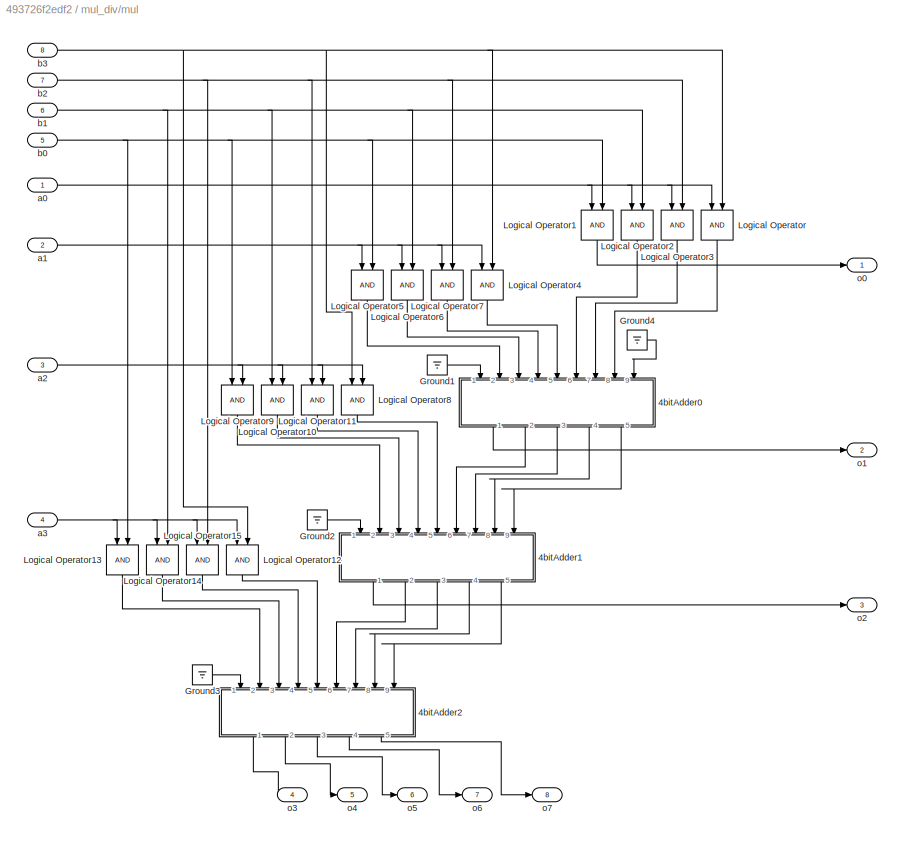
BLOCK [SubSystem] mul_div/mul
  Ports = [8, 8]
  RequestExecContextInheritance = off
BLOCK [SubSystem] mul_div/mul/4bitAdder0
  Ports = [9, 5]
  RequestExecContextInheritance = off
BLOCK [SubSystem] mul_div/mul/4bitAdder0/FA
  Ports = [3, 2]
  RequestExecContextInheritance = off
BLOCK [Inport] mul_div/mul/4bitAdder0/FA/In2
  IconDisplay = Port number
BLOCK [Inport] mul_div/mul/4bitAdder0/FA/In3
  IconDisplay = Port number
  Port = 2
BLOCK [Inport] mul_div/mul/4bitAdder0/FA/In4
  IconDisplay = Port number
  Port = 3
BLOCK [Logic] mul_div/mul/4bitAdder0/FA/Logical Operator
  AllPortsSameDT = off
  IconShape = distinctive
  Operator = XOR
  OutDataTypeStr = boolean
  Ports = [2, 1]
BLOCK [Logic] mul_div/mul/4bitAdder0/FA/Logical Operator1
  AllPortsSameDT = off
  IconShape = distinctive
  Operator = XOR
  OutDataTypeStr = boolean
  Ports = [2, 1]
BLOCK [Logic] mul_div/mul/4bitAdder0/FA/Logical Operator2
  AllPortsSameDT = off
  IconShape = distinctive
  OutDataTypeStr = boolean
  Ports = [2, 1]
BLOCK [Logic] mul_div/mul/4bitAdder0/FA/Logical Operator3
  AllPortsSameDT = off
  IconShape = distinctive
  OutDataTypeStr = boolean
  Ports = [2, 1]
BLOCK [Logic] mul_div/mul/4bitAdder0/FA/Logical Operator4
  AllPortsSameDT = off
  IconShape = distinctive
  Operator = OR
  OutDataTypeStr = boolean
  Ports = [2, 1]
BLOCK [Outport] mul_div/mul/4bitAdder0/FA/Out1
  IconDisplay = Port number
  Port = 2
BLOCK [Outport] mul_div/mul/4bitAdder0/FA/Out2
  IconDisplay = Port number
BLOCK [SubSystem] mul_div/mul/4bitAdder0/FA1
  Ports = [3, 2]
  RequestExecContextInheritance = off
BLOCK [Inport] mul_div/mul/4bitAdder0/FA1/In2
  IconDisplay = Port number
BLOCK [Inport] mul_div/mul/4bitAdder0/FA1/In3
  IconDisplay = Port number
  Port = 2
BLOCK [Inport] mul_div/mul/4bitAdder0/FA1/In4
  IconDisplay = Port number
  Port = 3
BLOCK [Logic] mul_div/mul/4bitAdder0/FA1/Logical Operator
  AllPortsSameDT = off
  IconShape = distinctive
  Operator = XOR
  OutDataTypeStr = boolean
  Ports = [2, 1]
BLOCK [Logic] mul_div/mul/4bitAdder0/FA1/Logical Operator1
  AllPortsSameDT = off
  IconShape = distinctive
  Operator = XOR
  OutDataTypeStr = boolean
  Ports = [2, 1]
BLOCK [Logic] mul_div/mul/4bitAdder0/FA1/Logical Operator2
  AllPortsSameDT = off
  IconShape = distinctive
  OutDataTypeStr = boolean
  Ports = [2, 1]
BLOCK [Logic] mul_div/mul/4bitAdder0/FA1/Logical Operator3
  AllPortsSameDT = off
  IconShape = distinctive
  OutDataTypeStr = boolean
  Ports = [2, 1]
BLOCK [Logic] mul_div/mul/4bitAdder0/FA1/Logical Operator4
  AllPortsSameDT = off
  IconShape = distinctive
  Operator = OR
  OutDataTypeStr = boolean
  Ports = [2, 1]
BLOCK [Outport] mul_div/mul/4bitAdder0/FA1/Out1
  IconDisplay = Port number
  Port = 2
BLOCK [Outport] mul_div/mul/4bitAdder0/FA1/Out2
  IconDisplay = Port number
BLOCK [SubSystem] mul_div/mul/4bitAdder0/FA2
  Ports = [3, 2]
  RequestExecContextInheritance = off
BLOCK [Inport] mul_div/mul/4bitAdder0/FA2/In2
  IconDisplay = Port number
BLOCK [Inport] mul_div/mul/4bitAdder0/FA2/In3
  IconDisplay = Port number
  Port = 2
BLOCK [Inport] mul_div/mul/4bitAdder0/FA2/In4
  IconDisplay = Port number
  Port = 3
BLOCK [Logic] mul_div/mul/4bitAdder0/FA2/Logical Operator
  AllPortsSameDT = off
  IconShape = distinctive
  Operator = XOR
  OutDataTypeStr = boolean
  Ports = [2, 1]
BLOCK [Logic] mul_div/mul/4bitAdder0/FA2/Logical Operator1
  AllPortsSameDT = off
  IconShape = distinctive
  Operator = XOR
  OutDataTypeStr = boolean
  Ports = [2, 1]
BLOCK [Logic] mul_div/mul/4bitAdder0/FA2/Logical Operator2
  AllPortsSameDT = off
  IconShape = distinctive
  OutDataTypeStr = boolean
  Ports = [2, 1]
BLOCK [Logic] mul_div/mul/4bitAdder0/FA2/Logical Operator3
  AllPortsSameDT = off
  IconShape = distinctive
  OutDataTypeStr = boolean
  Ports = [2, 1]
BLOCK [Logic] mul_div/mul/4bitAdder0/FA2/Logical Operator4
  AllPortsSameDT = off
  IconShape = distinctive
  Operator = OR
  OutDataTypeStr = boolean
  Ports = [2, 1]
BLOCK [Outport] mul_div/mul/4bitAdder0/FA2/Out1
  IconDisplay = Port number
  Port = 2
BLOCK [Outport] mul_div/mul/4bitAdder0/FA2/Out2
  IconDisplay = Port number
BLOCK [SubSystem] mul_div/mul/4bitAdder0/FA3
  Ports = [3, 2]
  RequestExecContextInheritance = off
BLOCK [Inport] mul_div/mul/4bitAdder0/FA3/In2
  IconDisplay = Port number
BLOCK [Inport] mul_div/mul/4bitAdder0/FA3/In3
  IconDisplay = Port number
  Port = 2
BLOCK [Inport] mul_div/mul/4bitAdder0/FA3/In4
  IconDisplay = Port number
  Port = 3
BLOCK [Logic] mul_div/mul/4bitAdder0/FA3/Logical Operator
  AllPortsSameDT = off
  IconShape = distinctive
  Operator = XOR
  OutDataTypeStr = boolean
  Ports = [2, 1]
BLOCK [Logic] mul_div/mul/4bitAdder0/FA3/Logical Operator1
  AllPortsSameDT = off
  IconShape = distinctive
  Operator = XOR
  OutDataTypeStr = boolean
  Ports = [2, 1]
BLOCK [Logic] mul_div/mul/4bitAdder0/FA3/Logical Operator2
  AllPortsSameDT = off
  IconShape = distinctive
  OutDataTypeStr = boolean
  Ports = [2, 1]
BLOCK [Logic] mul_div/mul/4bitAdder0/FA3/Logical Operator3
  AllPortsSameDT = off
  IconShape = distinctive
  OutDataTypeStr = boolean
  Ports = [2, 1]
BLOCK [Logic] mul_div/mul/4bitAdder0/FA3/Logical Operator4
  AllPortsSameDT = off
  IconShape = distinctive
  Operator = OR
  OutDataTypeStr = boolean
  Ports = [2, 1]
BLOCK [Outport] mul_div/mul/4bitAdder0/FA3/Out1
  IconDisplay = Port number
  Port = 2
BLOCK [Outport] mul_div/mul/4bitAdder0/FA3/Out2
  IconDisplay = Port number
BLOCK [Inport] mul_div/mul/4bitAdder0/a0
  IconDisplay = Port number
  Port = 2
BLOCK [Inport] mul_div/mul/4bitAdder0/a1
  IconDisplay = Port number
  Port = 3
BLOCK [Inport] mul_div/mul/4bitAdder0/a2
  IconDisplay = Port number
  Port = 4
BLOCK [Inport] mul_div/mul/4bitAdder0/a3
  IconDisplay = Port number
  Port = 5
BLOCK [Inport] mul_div/mul/4bitAdder0/b0
  IconDisplay = Port number
  Port = 6
BLOCK [Inport] mul_div/mul/4bitAdder0/b1
  IconDisplay = Port number
  Port = 7
BLOCK [Inport] mul_div/mul/4bitAdder0/b2
  IconDisplay = Port number
  Port = 8
BLOCK [Inport] mul_div/mul/4bitAdder0/b3
  IconDisplay = Port number
  Port = 9
BLOCK [Inport] mul_div/mul/4bitAdder0/cin
  IconDisplay = Port number
BLOCK [Outport] mul_div/mul/4bitAdder0/cout
  IconDisplay = Port number
  Port = 5
BLOCK [Outport] mul_div/mul/4bitAdder0/s0
  IconDisplay = Port number
BLOCK [Outport] mul_div/mul/4bitAdder0/s1
  IconDisplay = Port number
  Port = 2
BLOCK [Outport] mul_div/mul/4bitAdder0/s2
  IconDisplay = Port number
  Port = 3
BLOCK [Outport] mul_div/mul/4bitAdder0/s3
  IconDisplay = Port number
  Port = 4
BLOCK [SubSystem] mul_div/mul/4bitAdder1
  Ports = [9, 5]
  RequestExecContextInheritance = off
BLOCK [SubSystem] mul_div/mul/4bitAdder1/FA0
  Ports = [3, 2]
  RequestExecContextInheritance = off
BLOCK [Inport] mul_div/mul/4bitAdder1/FA0/In2
  IconDisplay = Port number
BLOCK [Inport] mul_div/mul/4bitAdder1/FA0/In3
  IconDisplay = Port number
  Port = 2
BLOCK [Inport] mul_div/mul/4bitAdder1/FA0/In4
  IconDisplay = Port number
  Port = 3
BLOCK [Logic] mul_div/mul/4bitAdder1/FA0/Logical Operator
  AllPortsSameDT = off
  IconShape = distinctive
  Operator = XOR
  OutDataTypeStr = boolean
  Ports = [2, 1]
BLOCK [Logic] mul_div/mul/4bitAdder1/FA0/Logical Operator1
  AllPortsSameDT = off
  IconShape = distinctive
  Operator = XOR
  OutDataTypeStr = boolean
  Ports = [2, 1]
BLOCK [Logic] mul_div/mul/4bitAdder1/FA0/Logical Operator2
  AllPortsSameDT = off
  IconShape = distinctive
  OutDataTypeStr = boolean
  Ports = [2, 1]
BLOCK [Logic] mul_div/mul/4bitAdder1/FA0/Logical Operator3
  AllPortsSameDT = off
  IconShape = distinctive
  OutDataTypeStr = boolean
  Ports = [2, 1]
BLOCK [Logic] mul_div/mul/4bitAdder1/FA0/Logical Operator4
  AllPortsSameDT = off
  IconShape = distinctive
  Operator = OR
  OutDataTypeStr = boolean
  Ports = [2, 1]
BLOCK [Outport] mul_div/mul/4bitAdder1/FA0/Out1
  IconDisplay = Port number
  Port = 2
BLOCK [Outport] mul_div/mul/4bitAdder1/FA0/Out2
  IconDisplay = Port number
BLOCK [SubSystem] mul_div/mul/4bitAdder1/FA1
  Ports = [3, 2]
  RequestExecContextInheritance = off
BLOCK [Inport] mul_div/mul/4bitAdder1/FA1/In2
  IconDisplay = Port number
BLOCK [Inport] mul_div/mul/4bitAdder1/FA1/In3
  IconDisplay = Port number
  Port = 2
BLOCK [Inport] mul_div/mul/4bitAdder1/FA1/In4
  IconDisplay = Port number
  Port = 3
BLOCK [Logic] mul_div/mul/4bitAdder1/FA1/Logical Operator
  AllPortsSameDT = off
  IconShape = distinctive
  Operator = XOR
  OutDataTypeStr = boolean
  Ports = [2, 1]
BLOCK [Logic] mul_div/mul/4bitAdder1/FA1/Logical Operator1
  AllPortsSameDT = off
  IconShape = distinctive
  Operator = XOR
  OutDataTypeStr = boolean
  Ports = [2, 1]
BLOCK [Logic] mul_div/mul/4bitAdder1/FA1/Logical Operator2
  AllPortsSameDT = off
  IconShape = distinctive
  OutDataTypeStr = boolean
  Ports = [2, 1]
BLOCK [Logic] mul_div/mul/4bitAdder1/FA1/Logical Operator3
  AllPortsSameDT = off
  IconShape = distinctive
  OutDataTypeStr = boolean
  Ports = [2, 1]
BLOCK [Logic] mul_div/mul/4bitAdder1/FA1/Logical Operator4
  AllPortsSameDT = off
  IconShape = distinctive
  Operator = OR
  OutDataTypeStr = boolean
  Ports = [2, 1]
BLOCK [Outport] mul_div/mul/4bitAdder1/FA1/Out1
  IconDisplay = Port number
  Port = 2
BLOCK [Outport] mul_div/mul/4bitAdder1/FA1/Out2
  IconDisplay = Port number
BLOCK [SubSystem] mul_div/mul/4bitAdder1/FA2
  Ports = [3, 2]
  RequestExecContextInheritance = off
BLOCK [Inport] mul_div/mul/4bitAdder1/FA2/In2
  IconDisplay = Port number
BLOCK [Inport] mul_div/mul/4bitAdder1/FA2/In3
  IconDisplay = Port number
  Port = 2
BLOCK [Inport] mul_div/mul/4bitAdder1/FA2/In4
  IconDisplay = Port number
  Port = 3
BLOCK [Logic] mul_div/mul/4bitAdder1/FA2/Logical Operator
  AllPortsSameDT = off
  IconShape = distinctive
  Operator = XOR
  OutDataTypeStr = boolean
  Ports = [2, 1]
BLOCK [Logic] mul_div/mul/4bitAdder1/FA2/Logical Operator1
  AllPortsSameDT = off
  IconShape = distinctive
  Operator = XOR
  OutDataTypeStr = boolean
  Ports = [2, 1]
BLOCK [Logic] mul_div/mul/4bitAdder1/FA2/Logical Operator2
  AllPortsSameDT = off
  IconShape = distinctive
  OutDataTypeStr = boolean
  Ports = [2, 1]
BLOCK [Logic] mul_div/mul/4bitAdder1/FA2/Logical Operator3
  AllPortsSameDT = off
  IconShape = distinctive
  OutDataTypeStr = boolean
  Ports = [2, 1]
BLOCK [Logic] mul_div/mul/4bitAdder1/FA2/Logical Operator4
  AllPortsSameDT = off
  IconShape = distinctive
  Operator = OR
  OutDataTypeStr = boolean
  Ports = [2, 1]
BLOCK [Outport] mul_div/mul/4bitAdder1/FA2/Out1
  IconDisplay = Port number
  Port = 2
BLOCK [Outport] mul_div/mul/4bitAdder1/FA2/Out2
  IconDisplay = Port number
BLOCK [SubSystem] mul_div/mul/4bitAdder1/FA3
  Ports = [3, 2]
  RequestExecContextInheritance = off
BLOCK [Inport] mul_div/mul/4bitAdder1/FA3/In2
  IconDisplay = Port number
BLOCK [Inport] mul_div/mul/4bitAdder1/FA3/In3
  IconDisplay = Port number
  Port = 2
BLOCK [Inport] mul_div/mul/4bitAdder1/FA3/In4
  IconDisplay = Port number
  Port = 3
BLOCK [Logic] mul_div/mul/4bitAdder1/FA3/Logical Operator
  AllPortsSameDT = off
  IconShape = distinctive
  Operator = XOR
  OutDataTypeStr = boolean
  Ports = [2, 1]
BLOCK [Logic] mul_div/mul/4bitAdder1/FA3/Logical Operator1
  AllPortsSameDT = off
  IconShape = distinctive
  Operator = XOR
  OutDataTypeStr = boolean
  Ports = [2, 1]
BLOCK [Logic] mul_div/mul/4bitAdder1/FA3/Logical Operator2
  AllPortsSameDT = off
  IconShape = distinctive
  OutDataTypeStr = boolean
  Ports = [2, 1]
BLOCK [Logic] mul_div/mul/4bitAdder1/FA3/Logical Operator3
  AllPortsSameDT = off
  IconShape = distinctive
  OutDataTypeStr = boolean
  Ports = [2, 1]
BLOCK [Logic] mul_div/mul/4bitAdder1/FA3/Logical Operator4
  AllPortsSameDT = off
  IconShape = distinctive
  Operator = OR
  OutDataTypeStr = boolean
  Ports = [2, 1]
BLOCK [Outport] mul_div/mul/4bitAdder1/FA3/Out1
  IconDisplay = Port number
  Port = 2
BLOCK [Outport] mul_div/mul/4bitAdder1/FA3/Out2
  IconDisplay = Port number
BLOCK [Inport] mul_div/mul/4bitAdder1/a0
  IconDisplay = Port number
  Port = 2
BLOCK [Inport] mul_div/mul/4bitAdder1/a1
  IconDisplay = Port number
  Port = 3
BLOCK [Inport] mul_div/mul/4bitAdder1/a2
  IconDisplay = Port number
  Port = 4
BLOCK [Inport] mul_div/mul/4bitAdder1/a3
  IconDisplay = Port number
  Port = 5
BLOCK [Inport] mul_div/mul/4bitAdder1/b0
  IconDisplay = Port number
  Port = 6
BLOCK [Inport] mul_div/mul/4bitAdder1/b1
  IconDisplay = Port number
  Port = 7
BLOCK [Inport] mul_div/mul/4bitAdder1/b2
  IconDisplay = Port number
  Port = 8
BLOCK [Inport] mul_div/mul/4bitAdder1/b3
  IconDisplay = Port number
  Port = 9
BLOCK [Inport] mul_div/mul/4bitAdder1/cin
  IconDisplay = Port number
BLOCK [Outport] mul_div/mul/4bitAdder1/cout
  IconDisplay = Port number
  Port = 5
BLOCK [Outport] mul_div/mul/4bitAdder1/s0
  IconDisplay = Port number
BLOCK [Outport] mul_div/mul/4bitAdder1/s1
  IconDisplay = Port number
  Port = 2
BLOCK [Outport] mul_div/mul/4bitAdder1/s2
  IconDisplay = Port number
  Port = 3
BLOCK [Outport] mul_div/mul/4bitAdder1/s3
  IconDisplay = Port number
  Port = 4
BLOCK [SubSystem] mul_div/mul/4bitAdder2
  Ports = [9, 5]
  RequestExecContextInheritance = off
BLOCK [SubSystem] mul_div/mul/4bitAdder2/FA0
  Ports = [3, 2]
  RequestExecContextInheritance = off
BLOCK [Inport] mul_div/mul/4bitAdder2/FA0/In2
  IconDisplay = Port number
BLOCK [Inport] mul_div/mul/4bitAdder2/FA0/In3
  IconDisplay = Port number
  Port = 2
BLOCK [Inport] mul_div/mul/4bitAdder2/FA0/In4
  IconDisplay = Port number
  Port = 3
BLOCK [Logic] mul_div/mul/4bitAdder2/FA0/Logical Operator
  AllPortsSameDT = off
  IconShape = distinctive
  Operator = XOR
  OutDataTypeStr = boolean
  Ports = [2, 1]
BLOCK [Logic] mul_div/mul/4bitAdder2/FA0/Logical Operator1
  AllPortsSameDT = off
  IconShape = distinctive
  Operator = XOR
  OutDataTypeStr = boolean
  Ports = [2, 1]
BLOCK [Logic] mul_div/mul/4bitAdder2/FA0/Logical Operator2
  AllPortsSameDT = off
  IconShape = distinctive
  OutDataTypeStr = boolean
  Ports = [2, 1]
BLOCK [Logic] mul_div/mul/4bitAdder2/FA0/Logical Operator3
  AllPortsSameDT = off
  IconShape = distinctive
  OutDataTypeStr = boolean
  Ports = [2, 1]
BLOCK [Logic] mul_div/mul/4bitAdder2/FA0/Logical Operator4
  AllPortsSameDT = off
  IconShape = distinctive
  Operator = OR
  OutDataTypeStr = boolean
  Ports = [2, 1]
BLOCK [Outport] mul_div/mul/4bitAdder2/FA0/Out1
  IconDisplay = Port number
  Port = 2
BLOCK [Outport] mul_div/mul/4bitAdder2/FA0/Out2
  IconDisplay = Port number
BLOCK [SubSystem] mul_div/mul/4bitAdder2/FA1
  Ports = [3, 2]
  RequestExecContextInheritance = off
BLOCK [Inport] mul_div/mul/4bitAdder2/FA1/In2
  IconDisplay = Port number
BLOCK [Inport] mul_div/mul/4bitAdder2/FA1/In3
  IconDisplay = Port number
  Port = 2
BLOCK [Inport] mul_div/mul/4bitAdder2/FA1/In4
  IconDisplay = Port number
  Port = 3
BLOCK [Logic] mul_div/mul/4bitAdder2/FA1/Logical Operator
  AllPortsSameDT = off
  IconShape = distinctive
  Operator = XOR
  OutDataTypeStr = boolean
  Ports = [2, 1]
BLOCK [Logic] mul_div/mul/4bitAdder2/FA1/Logical Operator1
  AllPortsSameDT = off
  IconShape = distinctive
  Operator = XOR
  OutDataTypeStr = boolean
  Ports = [2, 1]
BLOCK [Logic] mul_div/mul/4bitAdder2/FA1/Logical Operator2
  AllPortsSameDT = off
  IconShape = distinctive
  OutDataTypeStr = boolean
  Ports = [2, 1]
BLOCK [Logic] mul_div/mul/4bitAdder2/FA1/Logical Operator3
  AllPortsSameDT = off
  IconShape = distinctive
  OutDataTypeStr = boolean
  Ports = [2, 1]
BLOCK [Logic] mul_div/mul/4bitAdder2/FA1/Logical Operator4
  AllPortsSameDT = off
  IconShape = distinctive
  Operator = OR
  OutDataTypeStr = boolean
  Ports = [2, 1]
BLOCK [Outport] mul_div/mul/4bitAdder2/FA1/Out1
  IconDisplay = Port number
  Port = 2
BLOCK [Outport] mul_div/mul/4bitAdder2/FA1/Out2
  IconDisplay = Port number
BLOCK [SubSystem] mul_div/mul/4bitAdder2/FA2
  Ports = [3, 2]
  RequestExecContextInheritance = off
BLOCK [Inport] mul_div/mul/4bitAdder2/FA2/In2
  IconDisplay = Port number
BLOCK [Inport] mul_div/mul/4bitAdder2/FA2/In3
  IconDisplay = Port number
  Port = 2
BLOCK [Inport] mul_div/mul/4bitAdder2/FA2/In4
  IconDisplay = Port number
  Port = 3
BLOCK [Logic] mul_div/mul/4bitAdder2/FA2/Logical Operator
  AllPortsSameDT = off
  IconShape = distinctive
  Operator = XOR
  OutDataTypeStr = boolean
  Ports = [2, 1]
BLOCK [Logic] mul_div/mul/4bitAdder2/FA2/Logical Operator1
  AllPortsSameDT = off
  IconShape = distinctive
  Operator = XOR
  OutDataTypeStr = boolean
  Ports = [2, 1]
BLOCK [Logic] mul_div/mul/4bitAdder2/FA2/Logical Operator2
  AllPortsSameDT = off
  IconShape = distinctive
  OutDataTypeStr = boolean
  Ports = [2, 1]
BLOCK [Logic] mul_div/mul/4bitAdder2/FA2/Logical Operator3
  AllPortsSameDT = off
  IconShape = distinctive
  OutDataTypeStr = boolean
  Ports = [2, 1]
BLOCK [Logic] mul_div/mul/4bitAdder2/FA2/Logical Operator4
  AllPortsSameDT = off
  IconShape = distinctive
  Operator = OR
  OutDataTypeStr = boolean
  Ports = [2, 1]
BLOCK [Outport] mul_div/mul/4bitAdder2/FA2/Out1
  IconDisplay = Port number
  Port = 2
BLOCK [Outport] mul_div/mul/4bitAdder2/FA2/Out2
  IconDisplay = Port number
BLOCK [SubSystem] mul_div/mul/4bitAdder2/FA3
  Ports = [3, 2]
  RequestExecContextInheritance = off
BLOCK [Inport] mul_div/mul/4bitAdder2/FA3/In2
  IconDisplay = Port number
BLOCK [Inport] mul_div/mul/4bitAdder2/FA3/In3
  IconDisplay = Port number
  Port = 2
BLOCK [Inport] mul_div/mul/4bitAdder2/FA3/In4
  IconDisplay = Port number
  Port = 3
BLOCK [Logic] mul_div/mul/4bitAdder2/FA3/Logical Operator
  AllPortsSameDT = off
  IconShape = distinctive
  Operator = XOR
  OutDataTypeStr = boolean
  Ports = [2, 1]
BLOCK [Logic] mul_div/mul/4bitAdder2/FA3/Logical Operator1
  AllPortsSameDT = off
  IconShape = distinctive
  Operator = XOR
  OutDataTypeStr = boolean
  Ports = [2, 1]
BLOCK [Logic] mul_div/mul/4bitAdder2/FA3/Logical Operator2
  AllPortsSameDT = off
  IconShape = distinctive
  OutDataTypeStr = boolean
  Ports = [2, 1]
BLOCK [Logic] mul_div/mul/4bitAdder2/FA3/Logical Operator3
  AllPortsSameDT = off
  IconShape = distinctive
  OutDataTypeStr = boolean
  Ports = [2, 1]
BLOCK [Logic] mul_div/mul/4bitAdder2/FA3/Logical Operator4
  AllPortsSameDT = off
  IconShape = distinctive
  Operator = OR
  OutDataTypeStr = boolean
  Ports = [2, 1]
BLOCK [Outport] mul_div/mul/4bitAdder2/FA3/Out1
  IconDisplay = Port number
  Port = 2
BLOCK [Outport] mul_div/mul/4bitAdder2/FA3/Out2
  IconDisplay = Port number
BLOCK [Inport] mul_div/mul/4bitAdder2/a0
  IconDisplay = Port number
  Port = 2
BLOCK [Inport] mul_div/mul/4bitAdder2/a1
  IconDisplay = Port number
  Port = 3
BLOCK [Inport] mul_div/mul/4bitAdder2/a2
  IconDisplay = Port number
  Port = 4
BLOCK [Inport] mul_div/mul/4bitAdder2/a3
  IconDisplay = Port number
  Port = 5
BLOCK [Inport] mul_div/mul/4bitAdder2/b0
  IconDisplay = Port number
  Port = 6
BLOCK [Inport] mul_div/mul/4bitAdder2/b1
  IconDisplay = Port number
  Port = 7
BLOCK [Inport] mul_div/mul/4bitAdder2/b2
  IconDisplay = Port number
  Port = 8
BLOCK [Inport] mul_div/mul/4bitAdder2/b3
  IconDisplay = Port number
  Port = 9
BLOCK [Inport] mul_div/mul/4bitAdder2/cin
  IconDisplay = Port number
BLOCK [Outport] mul_div/mul/4bitAdder2/cout
  IconDisplay = Port number
  Port = 5
BLOCK [Outport] mul_div/mul/4bitAdder2/s0
  IconDisplay = Port number
BLOCK [Outport] mul_div/mul/4bitAdder2/s1
  IconDisplay = Port number
  Port = 2
BLOCK [Outport] mul_div/mul/4bitAdder2/s2
  IconDisplay = Port number
  Port = 3
BLOCK [Outport] mul_div/mul/4bitAdder2/s3
  IconDisplay = Port number
  Port = 4
BLOCK [Ground] mul_div/mul/Ground1
BLOCK [Ground] mul_div/mul/Ground2
BLOCK [Ground] mul_div/mul/Ground3
BLOCK [Ground] mul_div/mul/Ground4
BLOCK [Logic] mul_div/mul/Logical Operator
  AllPortsSameDT = off
  IconShape = distinctive
  OutDataTypeStr = boolean
  Ports = [2, 1]
BLOCK [Logic] mul_div/mul/Logical Operator1
  AllPortsSameDT = off
  IconShape = distinctive
  OutDataTypeStr = boolean
  Ports = [2, 1]
BLOCK [Logic] mul_div/mul/Logical Operator10
  AllPortsSameDT = off
  IconShape = distinctive
  OutDataTypeStr = boolean
  Ports = [2, 1]
BLOCK [Logic] mul_div/mul/Logical Operator11
  AllPortsSameDT = off
  IconShape = distinctive
  OutDataTypeStr = boolean
  Ports = [2, 1]
BLOCK [Logic] mul_div/mul/Logical Operator12
  AllPortsSameDT = off
  IconShape = distinctive
  OutDataTypeStr = boolean
  Ports = [2, 1]
BLOCK [Logic] mul_div/mul/Logical Operator13
  AllPortsSameDT = off
  IconShape = distinctive
  OutDataTypeStr = boolean
  Ports = [2, 1]
BLOCK [Logic] mul_div/mul/Logical Operator14
  AllPortsSameDT = off
  IconShape = distinctive
  OutDataTypeStr = boolean
  Ports = [2, 1]
BLOCK [Logic] mul_div/mul/Logical Operator15
  AllPortsSameDT = off
  IconShape = distinctive
  OutDataTypeStr = boolean
  Ports = [2, 1]
BLOCK [Logic] mul_div/mul/Logical Operator2
  AllPortsSameDT = off
  IconShape = distinctive
  OutDataTypeStr = boolean
  Ports = [2, 1]
BLOCK [Logic] mul_div/mul/Logical Operator3
  AllPortsSameDT = off
  IconShape = distinctive
  OutDataTypeStr = boolean
  Ports = [2, 1]
BLOCK [Logic] mul_div/mul/Logical Operator4
  AllPortsSameDT = off
  IconShape = distinctive
  OutDataTypeStr = boolean
  Ports = [2, 1]
BLOCK [Logic] mul_div/mul/Logical Operator5
  AllPortsSameDT = off
  IconShape = distinctive
  OutDataTypeStr = boolean
  Ports = [2, 1]
BLOCK [Logic] mul_div/mul/Logical Operator6
  AllPortsSameDT = off
  IconShape = distinctive
  OutDataTypeStr = boolean
  Ports = [2, 1]
BLOCK [Logic] mul_div/mul/Logical Operator7
  AllPortsSameDT = off
  IconShape = distinctive
  OutDataTypeStr = boolean
  Ports = [2, 1]
BLOCK [Logic] mul_div/mul/Logical Operator8
  AllPortsSameDT = off
  IconShape = distinctive
  OutDataTypeStr = boolean
  Ports = [2, 1]
BLOCK [Logic] mul_div/mul/Logical Operator9
  AllPortsSameDT = off
  IconShape = distinctive
  OutDataTypeStr = boolean
  Ports = [2, 1]
BLOCK [Inport] mul_div/mul/a0
  IconDisplay = Port number
BLOCK [Inport] mul_div/mul/a1
  IconDisplay = Port number
  Port = 2
BLOCK [Inport] mul_div/mul/a2
  IconDisplay = Port number
  Port = 3
BLOCK [Inport] mul_div/mul/a3
  IconDisplay = Port number
  Port = 4
BLOCK [Inport] mul_div/mul/b0
  IconDisplay = Port number
  Port = 5
BLOCK [Inport] mul_div/mul/b1
  IconDisplay = Port number
  Port = 6
BLOCK [Inport] mul_div/mul/b2
  IconDisplay = Port number
  Port = 7
BLOCK [Inport] mul_div/mul/b3
  IconDisplay = Port number
  Port = 8
BLOCK [Outport] mul_div/mul/o0
  IconDisplay = Port number
BLOCK [Outport] mul_div/mul/o1
  IconDisplay = Port number
  Port = 2
BLOCK [Outport] mul_div/mul/o2
  IconDisplay = Port number
  Port = 3
BLOCK [Outport] mul_div/mul/o3
  IconDisplay = Port number
  Port = 4
BLOCK [Outport] mul_div/mul/o4
  IconDisplay = Port number
  Port = 5
BLOCK [Outport] mul_div/mul/o5
  IconDisplay = Port number
  Port = 6
BLOCK [Outport] mul_div/mul/o6
  IconDisplay = Port number
  Port = 7
BLOCK [Outport] mul_div/mul/o7
  IconDisplay = Port number
  Port = 8
BLOCK [Outport] mul_div/o0
  IconDisplay = Port number
BLOCK [Outport] mul_div/o1
  IconDisplay = Port number
  Port = 2
BLOCK [Outport] mul_div/o2
  IconDisplay = Port number
  Port = 3
BLOCK [Outport] mul_div/o3
  IconDisplay = Port number
  Port = 4
BLOCK [Inport] mul_div/sel
  IconDisplay = Port number
BLOCK [Constant] sel0
  Value = 0
BLOCK [Constant] sel1
  Value = 0
BLOCK [Constant] sel2
NET ALU0/FA/In2:1 -> ALU0/FA/Logical Operator3:1, ALU0/FA/Logical Operator:1
NET ALU0/FA/In3:1 -> ALU0/FA/Logical Operator3:2, ALU0/FA/Logical Operator:2
NET ALU0/FA/In4:1 -> ALU0/FA/Logical Operator1:2, ALU0/FA/Logical Operator2:2
LINE ALU0/FA/Logical Operator1:1 -> ALU0/FA/Out2:1
LINE ALU0/FA/Logical Operator2:1 -> ALU0/FA/Logical Operator4:1
LINE ALU0/FA/Logical Operator3:1 -> ALU0/FA/Logical Operator4:2
LINE ALU0/FA/Logical Operator4:1 -> ALU0/FA/Out1:1
NET ALU0/FA/Logical Operator:1 -> ALU0/FA/Logical Operator1:1, ALU0/FA/Logical Operator2:1
NET ALU0/FA:1 -> ALU0/Mux:3, ALU0/Mux:4
LINE ALU0/FA:2 -> ALU0/Logical Operator3:1
LINE ALU0/Logical Operator1:1 -> ALU0/Mux:2
LINE ALU0/Logical Operator2:1 -> ALU0/FA:2
LINE ALU0/Logical Operator3:1 -> ALU0/cout:1
LINE ALU0/Logical Operator:1 -> ALU0/Mux:1
LINE ALU0/Mux:1 -> ALU0/Selector:1
LINE ALU0/Selector:1 -> ALU0/out:1
LINE ALU0/Subsystem1/Add:1 -> ALU0/Subsystem1/Out1:1
LINE ALU0/Subsystem1/Bit to Integer Converter:1 -> ALU0/Subsystem1/Add:1
LINE ALU0/Subsystem1/Ground:1 -> ALU0/Subsystem1/Logical Operator3:1
LINE ALU0/Subsystem1/Logical Operator3:1 -> ALU0/Subsystem1/Add:2
LINE ALU0/Subsystem1/Mux1:1 -> ALU0/Subsystem1/Bit to Integer Converter:1
LINE ALU0/Subsystem1/sel0:1 -> ALU0/Subsystem1/Mux1:3
LINE ALU0/Subsystem1/sel1:1 -> ALU0/Subsystem1/Mux1:2
LINE ALU0/Subsystem1/sel2:1 -> ALU0/Subsystem1/Mux1:1
LINE ALU0/Subsystem1:1 -> ALU0/Selector:2
NET ALU0/a:1 -> ALU0/FA:1, ALU0/Logical Operator1:1, ALU0/Logical Operator:1
NET ALU0/b:1 -> ALU0/Logical Operator1:2, ALU0/Logical Operator2:1, ALU0/Logical Operator:2
LINE ALU0/cin:1 -> ALU0/FA:3
NET ALU0/mul_div:1 -> ALU0/Mux:5, ALU0/Mux:6
NET ALU0/sel0:1 -> ALU0/Logical Operator2:2, ALU0/Subsystem1:3
NET ALU0/sel1:1 -> ALU0/Logical Operator3:2, ALU0/Subsystem1:2
LINE ALU0/sel2:1 -> ALU0/Subsystem1:1
LINE ALU0:1 -> ALU1:3
LINE ALU0:2 -> Q0:1
NET ALU1/FA/In2:1 -> ALU1/FA/Logical Operator3:1, ALU1/FA/Logical Operator:1
NET ALU1/FA/In3:1 -> ALU1/FA/Logical Operator3:2, ALU1/FA/Logical Operator:2
NET ALU1/FA/In4:1 -> ALU1/FA/Logical Operator1:2, ALU1/FA/Logical Operator2:2
LINE ALU1/FA/Logical Operator1:1 -> ALU1/FA/Out2:1
LINE ALU1/FA/Logical Operator2:1 -> ALU1/FA/Logical Operator4:1
LINE ALU1/FA/Logical Operator3:1 -> ALU1/FA/Logical Operator4:2
LINE ALU1/FA/Logical Operator4:1 -> ALU1/FA/Out1:1
NET ALU1/FA/Logical Operator:1 -> ALU1/FA/Logical Operator1:1, ALU1/FA/Logical Operator2:1
NET ALU1/FA:1 -> ALU1/Mux:3, ALU1/Mux:4
LINE ALU1/FA:2 -> ALU1/Logical Operator3:1
LINE ALU1/Logical Operator1:1 -> ALU1/Mux:2
LINE ALU1/Logical Operator2:1 -> ALU1/FA:2
LINE ALU1/Logical Operator3:1 -> ALU1/cout:1
LINE ALU1/Logical Operator:1 -> ALU1/Mux:1
LINE ALU1/Mux:1 -> ALU1/Selector:1
LINE ALU1/Selector:1 -> ALU1/out:1
LINE ALU1/Subsystem1/Add:1 -> ALU1/Subsystem1/Out1:1
LINE ALU1/Subsystem1/Bit to Integer Converter:1 -> ALU1/Subsystem1/Add:1
LINE ALU1/Subsystem1/Ground:1 -> ALU1/Subsystem1/Logical Operator3:1
LINE ALU1/Subsystem1/Logical Operator3:1 -> ALU1/Subsystem1/Add:2
LINE ALU1/Subsystem1/Mux1:1 -> ALU1/Subsystem1/Bit to Integer Converter:1
LINE ALU1/Subsystem1/sel0:1 -> ALU1/Subsystem1/Mux1:3
LINE ALU1/Subsystem1/sel1:1 -> ALU1/Subsystem1/Mux1:2
LINE ALU1/Subsystem1/sel2:1 -> ALU1/Subsystem1/Mux1:1
LINE ALU1/Subsystem1:1 -> ALU1/Selector:2
NET ALU1/a:1 -> ALU1/FA:1, ALU1/Logical Operator1:1, ALU1/Logical Operator:1
NET ALU1/b:1 -> ALU1/Logical Operator1:2, ALU1/Logical Operator2:1, ALU1/Logical Operator:2
LINE ALU1/cin:1 -> ALU1/FA:3
NET ALU1/mul_div:1 -> ALU1/Mux:5, ALU1/Mux:6
NET ALU1/sel0:1 -> ALU1/Logical Operator2:2, ALU1/Subsystem1:3
NET ALU1/sel1:1 -> ALU1/Logical Operator3:2, ALU1/Subsystem1:2
LINE ALU1/sel2:1 -> ALU1/Subsystem1:1
LINE ALU1:1 -> ALU2:3
LINE ALU1:2 -> Q1:1
NET ALU2/FA/In2:1 -> ALU2/FA/Logical Operator3:1, ALU2/FA/Logical Operator:1
NET ALU2/FA/In3:1 -> ALU2/FA/Logical Operator3:2, ALU2/FA/Logical Operator:2
NET ALU2/FA/In4:1 -> ALU2/FA/Logical Operator1:2, ALU2/FA/Logical Operator2:2
LINE ALU2/FA/Logical Operator1:1 -> ALU2/FA/Out2:1
LINE ALU2/FA/Logical Operator2:1 -> ALU2/FA/Logical Operator4:1
LINE ALU2/FA/Logical Operator3:1 -> ALU2/FA/Logical Operator4:2
LINE ALU2/FA/Logical Operator4:1 -> ALU2/FA/Out1:1
NET ALU2/FA/Logical Operator:1 -> ALU2/FA/Logical Operator1:1, ALU2/FA/Logical Operator2:1
NET ALU2/FA:1 -> ALU2/Mux:3, ALU2/Mux:4
LINE ALU2/FA:2 -> ALU2/Logical Operator3:1
LINE ALU2/Logical Operator1:1 -> ALU2/Mux:2
LINE ALU2/Logical Operator2:1 -> ALU2/FA:2
LINE ALU2/Logical Operator3:1 -> ALU2/cout:1
LINE ALU2/Logical Operator:1 -> ALU2/Mux:1
LINE ALU2/Mux:1 -> ALU2/Selector:1
LINE ALU2/Selector:1 -> ALU2/out:1
LINE ALU2/Subsystem1/Add:1 -> ALU2/Subsystem1/Out1:1
LINE ALU2/Subsystem1/Bit to Integer Converter:1 -> ALU2/Subsystem1/Add:1
LINE ALU2/Subsystem1/Ground:1 -> ALU2/Subsystem1/Logical Operator3:1
LINE ALU2/Subsystem1/Logical Operator3:1 -> ALU2/Subsystem1/Add:2
LINE ALU2/Subsystem1/Mux1:1 -> ALU2/Subsystem1/Bit to Integer Converter:1
LINE ALU2/Subsystem1/sel0:1 -> ALU2/Subsystem1/Mux1:3
LINE ALU2/Subsystem1/sel1:1 -> ALU2/Subsystem1/Mux1:2
LINE ALU2/Subsystem1/sel2:1 -> ALU2/Subsystem1/Mux1:1
LINE ALU2/Subsystem1:1 -> ALU2/Selector:2
NET ALU2/a:1 -> ALU2/FA:1, ALU2/Logical Operator1:1, ALU2/Logical Operator:1
NET ALU2/b:1 -> ALU2/Logical Operator1:2, ALU2/Logical Operator2:1, ALU2/Logical Operator:2
LINE ALU2/cin:1 -> ALU2/FA:3
NET ALU2/mul_div:1 -> ALU2/Mux:5, ALU2/Mux:6
NET ALU2/sel0:1 -> ALU2/Logical Operator2:2, ALU2/Subsystem1:3
NET ALU2/sel1:1 -> ALU2/Logical Operator3:2, ALU2/Subsystem1:2
LINE ALU2/sel2:1 -> ALU2/Subsystem1:1
LINE ALU2:1 -> ALU3:3
LINE ALU2:2 -> Q2:1
NET ALU3/FA/In2:1 -> ALU3/FA/Logical Operator3:1, ALU3/FA/Logical Operator:1
NET ALU3/FA/In3:1 -> ALU3/FA/Logical Operator3:2, ALU3/FA/Logical Operator:2
NET ALU3/FA/In4:1 -> ALU3/FA/Logical Operator1:2, ALU3/FA/Logical Operator2:2
LINE ALU3/FA/Logical Operator1:1 -> ALU3/FA/Out2:1
LINE ALU3/FA/Logical Operator2:1 -> ALU3/FA/Logical Operator4:1
LINE ALU3/FA/Logical Operator3:1 -> ALU3/FA/Logical Operator4:2
LINE ALU3/FA/Logical Operator4:1 -> ALU3/FA/Out1:1
NET ALU3/FA/Logical Operator:1 -> ALU3/FA/Logical Operator1:1, ALU3/FA/Logical Operator2:1
NET ALU3/FA:1 -> ALU3/Mux:3, ALU3/Mux:4
LINE ALU3/FA:2 -> ALU3/Logical Operator3:1
LINE ALU3/Logical Operator1:1 -> ALU3/Mux:2
LINE ALU3/Logical Operator2:1 -> ALU3/FA:2
LINE ALU3/Logical Operator3:1 -> ALU3/cout:1
LINE ALU3/Logical Operator:1 -> ALU3/Mux:1
LINE ALU3/Mux:1 -> ALU3/Selector:1
LINE ALU3/Selector:1 -> ALU3/out:1
LINE ALU3/Subsystem1/Add:1 -> ALU3/Subsystem1/Out1:1
LINE ALU3/Subsystem1/Bit to Integer Converter:1 -> ALU3/Subsystem1/Add:1
LINE ALU3/Subsystem1/Ground:1 -> ALU3/Subsystem1/Logical Operator3:1
LINE ALU3/Subsystem1/Logical Operator3:1 -> ALU3/Subsystem1/Add:2
LINE ALU3/Subsystem1/Mux1:1 -> ALU3/Subsystem1/Bit to Integer Converter:1
LINE ALU3/Subsystem1/sel0:1 -> ALU3/Subsystem1/Mux1:3
LINE ALU3/Subsystem1/sel1:1 -> ALU3/Subsystem1/Mux1:2
LINE ALU3/Subsystem1/sel2:1 -> ALU3/Subsystem1/Mux1:1
LINE ALU3/Subsystem1:1 -> ALU3/Selector:2
NET ALU3/a:1 -> ALU3/FA:1, ALU3/Logical Operator1:1, ALU3/Logical Operator:1
NET ALU3/b:1 -> ALU3/Logical Operator1:2, ALU3/Logical Operator2:1, ALU3/Logical Operator:2
LINE ALU3/cin:1 -> ALU3/FA:3
NET ALU3/mul_div:1 -> ALU3/Mux:5, ALU3/Mux:6
NET ALU3/sel0:1 -> ALU3/Logical Operator2:2, ALU3/Subsystem1:3
NET ALU3/sel1:1 -> ALU3/Logical Operator3:2, ALU3/Subsystem1:2
LINE ALU3/sel2:1 -> ALU3/Subsystem1:1
LINE ALU3:1 -> Display4:1
LINE ALU3:2 -> Q3:1
NET a0:1 -> ALU0:1, mul_div:2
NET a1:1 -> ALU1:1, mul_div:3
NET a2:1 -> ALU2:1, mul_div:4
NET a3:1 -> ALU3:1, mul_div:5
NET b0:1 -> ALU0:2, mul_div:6
NET b1:1 -> ALU1:2, mul_div:7
NET b2:1 -> ALU2:2, mul_div:8
NET b3:1 -> ALU3:2, mul_div:9
NET mul_div/Add:1 -> mul_div/Selector1:2, mul_div/Selector2:2, mul_div/Selector3:2, mul_div/Selector4:2
LINE mul_div/Ground:1 -> mul_div/Logical Operator:1
LINE mul_div/Logical Operator1:1 -> mul_div/Logical Operator2:2
LINE mul_div/Logical Operator2:1 -> mul_div/err:1
LINE mul_div/Logical Operator:1 -> mul_div/Add:1
LINE mul_div/Mux1:1 -> mul_div/Selector1:1
LINE mul_div/Mux2:1 -> mul_div/Selector2:1
LINE mul_div/Mux3:1 -> mul_div/Selector3:1
LINE mul_div/Mux4:1 -> mul_div/Selector4:1
LINE mul_div/Selector1:1 -> mul_div/o3:1
LINE mul_div/Selector2:1 -> mul_div/o2:1
LINE mul_div/Selector3:1 -> mul_div/o1:1
LINE mul_div/Selector4:1 -> mul_div/o0:1
NET mul_div/a0:1 -> mul_div/div:1, mul_div/mul:1
NET mul_div/a1:1 -> mul_div/div:2, mul_div/mul:2
NET mul_div/a2:1 -> mul_div/div:3, mul_div/mul:3
NET mul_div/a3:1 -> mul_div/div:4, mul_div/mul:4
NET mul_div/b0:1 -> mul_div/Logical Operator1:4, mul_div/div:5, mul_div/mul:5
NET mul_div/b1:1 -> mul_div/Logical Operator1:3, mul_div/div:6, mul_div/mul:6
NET mul_div/b2:1 -> mul_div/Logical Operator1:2, mul_div/div:7, mul_div/mul:7
NET mul_div/b3:1 -> mul_div/Logical Operator1:1, mul_div/div:8, mul_div/mul:8
LINE mul_div/div/Ground1:1 -> mul_div/div/SB5:4
LINE mul_div/div/Ground2:1 -> mul_div/div/SB9:4
LINE mul_div/div/Ground:1 -> mul_div/div/SB2:4
LINE mul_div/div/Logical Operator10:1 -> mul_div/div/q1:1
LINE mul_div/div/Logical Operator11:1 -> mul_div/div/Logical Operator10:2
LINE mul_div/div/Logical Operator12:1 -> mul_div/div/q0:1
LINE mul_div/div/Logical Operator13:1 -> mul_div/div/Logical Operator12:2
LINE mul_div/div/Logical Operator14:1 -> mul_div/div/Logical Operator12:1
NET mul_div/div/Logical Operator1:1 -> mul_div/div/Logical Operator11:1, mul_div/div/SB1:1, mul_div/div/SB3:1, mul_div/div/SB5:1
NET mul_div/div/Logical Operator2:1 -> mul_div/div/Logical Operator5:2, mul_div/div/ctrl:3
LINE mul_div/div/Logical Operator3:1 -> mul_div/div/ctrl:2
LINE mul_div/div/Logical Operator4:1 -> mul_div/div/Logical Operator3:2
LINE mul_div/div/Logical Operator5:1 -> mul_div/div/q3:1
NET mul_div/div/Logical Operator6:1 -> mul_div/div/Logical Operator7:1, mul_div/div/Logical Operator9:1
LINE mul_div/div/Logical Operator7:1 -> mul_div/div/q2:1
LINE mul_div/div/Logical Operator8:1 -> mul_div/div/Logical Operator7:2
NET mul_div/div/Logical Operator9:1 -> mul_div/div/Logical Operator10:1, mul_div/div/Logical Operator14:1
NET mul_div/div/Logical Operator:1 -> mul_div/div/Logical Operator8:1, mul_div/div/SB0:1, mul_div/div/SB2:1
LINE mul_div/div/SB0/Bin:1 -> mul_div/div/SB0/FS:3
NET mul_div/div/SB0/FS/Bin:1 -> mul_div/div/SB0/FS/Logical Operator1:1, mul_div/div/SB0/FS/Logical Operator4:2
LINE mul_div/div/SB0/FS/Logical Operator1:1 -> mul_div/div/SB0/FS/D:1
LINE mul_div/div/SB0/FS/Logical Operator2:1 -> mul_div/div/SB0/FS/Logical Operator6:2
LINE mul_div/div/SB0/FS/Logical Operator3:1 -> mul_div/div/SB0/FS/Logical Operator2:2
LINE mul_div/div/SB0/FS/Logical Operator4:1 -> mul_div/div/SB0/FS/Logical Operator6:1
LINE mul_div/div/SB0/FS/Logical Operator5:1 -> mul_div/div/SB0/FS/Logical Operator4:1
LINE mul_div/div/SB0/FS/Logical Operator6:1 -> mul_div/div/SB0/FS/Bout:1
NET mul_div/div/SB0/FS/Logical Operator:1 -> mul_div/div/SB0/FS/Logical Operator1:2, mul_div/div/SB0/FS/Logical Operator5:1
NET mul_div/div/SB0/FS/a:1 -> mul_div/div/SB0/FS/Logical Operator3:1, mul_div/div/SB0/FS/Logical Operator:1
NET mul_div/div/SB0/FS/b:1 -> mul_div/div/SB0/FS/Logical Operator2:1, mul_div/div/SB0/FS/Logical Operator:2
LINE mul_div/div/SB0/FS:1 -> mul_div/div/SB0/Bout:1
LINE mul_div/div/SB0/FS:2 -> mul_div/div/SB0/ctrl:1
NET mul_div/div/SB0/a:1 -> mul_div/div/SB0/FS:1, mul_div/div/SB0/ctrl:2
LINE mul_div/div/SB0/b:1 -> mul_div/div/SB0/FS:2
LINE mul_div/div/SB0/ct:1 -> mul_div/div/SB0/ctrl:3
LINE mul_div/div/SB0/ctrl/Logical Operator1:1 -> mul_div/div/SB0/ctrl/Logical Operator2:2
LINE mul_div/div/SB0/ctrl/Logical Operator2:1 -> mul_div/div/SB0/ctrl/op:1
LINE mul_div/div/SB0/ctrl/Logical Operator3:1 -> mul_div/div/SB0/ctrl/Logical Operator:2
LINE mul_div/div/SB0/ctrl/Logical Operator:1 -> mul_div/div/SB0/ctrl/Logical Operator2:1
NET mul_div/div/SB0/ctrl/ctrl:1 -> mul_div/div/SB0/ctrl/Logical Operator1:2, mul_div/div/SB0/ctrl/Logical Operator3:1
LINE mul_div/div/SB0/ctrl/i0:1 -> mul_div/div/SB0/ctrl/Logical Operator:1
LINE mul_div/div/SB0/ctrl/i1:1 -> mul_div/div/SB0/ctrl/Logical Operator1:1
LINE mul_div/div/SB0/ctrl:1 -> mul_div/div/SB0/op:1
LINE mul_div/div/SB0:1 -> mul_div/div/Logical Operator:3
LINE mul_div/div/SB0:2 -> mul_div/div/SB1:2
LINE mul_div/div/SB1/Bin:1 -> mul_div/div/SB1/FS:3
NET mul_div/div/SB1/FS/Bin:1 -> mul_div/div/SB1/FS/Logical Operator1:1, mul_div/div/SB1/FS/Logical Operator4:2
LINE mul_div/div/SB1/FS/Logical Operator1:1 -> mul_div/div/SB1/FS/D:1
LINE mul_div/div/SB1/FS/Logical Operator2:1 -> mul_div/div/SB1/FS/Logical Operator6:2
LINE mul_div/div/SB1/FS/Logical Operator3:1 -> mul_div/div/SB1/FS/Logical Operator2:2
LINE mul_div/div/SB1/FS/Logical Operator4:1 -> mul_div/div/SB1/FS/Logical Operator6:1
LINE mul_div/div/SB1/FS/Logical Operator5:1 -> mul_div/div/SB1/FS/Logical Operator4:1
LINE mul_div/div/SB1/FS/Logical Operator6:1 -> mul_div/div/SB1/FS/Bout:1
NET mul_div/div/SB1/FS/Logical Operator:1 -> mul_div/div/SB1/FS/Logical Operator1:2, mul_div/div/SB1/FS/Logical Operator5:1
NET mul_div/div/SB1/FS/a:1 -> mul_div/div/SB1/FS/Logical Operator3:1, mul_div/div/SB1/FS/Logical Operator:1
NET mul_div/div/SB1/FS/b:1 -> mul_div/div/SB1/FS/Logical Operator2:1, mul_div/div/SB1/FS/Logical Operator:2
LINE mul_div/div/SB1/FS:1 -> mul_div/div/SB1/Bout:1
LINE mul_div/div/SB1/FS:2 -> mul_div/div/SB1/ctrl:1
NET mul_div/div/SB1/a:1 -> mul_div/div/SB1/FS:1, mul_div/div/SB1/ctrl:2
LINE mul_div/div/SB1/b:1 -> mul_div/div/SB1/FS:2
LINE mul_div/div/SB1/ct:1 -> mul_div/div/SB1/ctrl:3
LINE mul_div/div/SB1/ctrl/Logical Operator1:1 -> mul_div/div/SB1/ctrl/Logical Operator2:2
LINE mul_div/div/SB1/ctrl/Logical Operator2:1 -> mul_div/div/SB1/ctrl/op:1
LINE mul_div/div/SB1/ctrl/Logical Operator3:1 -> mul_div/div/SB1/ctrl/Logical Operator:2
LINE mul_div/div/SB1/ctrl/Logical Operator:1 -> mul_div/div/SB1/ctrl/Logical Operator2:1
NET mul_div/div/SB1/ctrl/ctrl:1 -> mul_div/div/SB1/ctrl/Logical Operator1:2, mul_div/div/SB1/ctrl/Logical Operator3:1
LINE mul_div/div/SB1/ctrl/i0:1 -> mul_div/div/SB1/ctrl/Logical Operator:1
LINE mul_div/div/SB1/ctrl/i1:1 -> mul_div/div/SB1/ctrl/Logical Operator1:1
LINE mul_div/div/SB1/ctrl:1 -> mul_div/div/SB1/op:1
LINE mul_div/div/SB1:1 -> mul_div/div/Logical Operator1:2
LINE mul_div/div/SB1:2 -> mul_div/div/SB4:2
LINE mul_div/div/SB2/Bin:1 -> mul_div/div/SB2/FS:3
NET mul_div/div/SB2/FS/Bin:1 -> mul_div/div/SB2/FS/Logical Operator1:1, mul_div/div/SB2/FS/Logical Operator4:2
LINE mul_div/div/SB2/FS/Logical Operator1:1 -> mul_div/div/SB2/FS/D:1
LINE mul_div/div/SB2/FS/Logical Operator2:1 -> mul_div/div/SB2/FS/Logical Operator6:2
LINE mul_div/div/SB2/FS/Logical Operator3:1 -> mul_div/div/SB2/FS/Logical Operator2:2
LINE mul_div/div/SB2/FS/Logical Operator4:1 -> mul_div/div/SB2/FS/Logical Operator6:1
LINE mul_div/div/SB2/FS/Logical Operator5:1 -> mul_div/div/SB2/FS/Logical Operator4:1
LINE mul_div/div/SB2/FS/Logical Operator6:1 -> mul_div/div/SB2/FS/Bout:1
NET mul_div/div/SB2/FS/Logical Operator:1 -> mul_div/div/SB2/FS/Logical Operator1:2, mul_div/div/SB2/FS/Logical Operator5:1
NET mul_div/div/SB2/FS/a:1 -> mul_div/div/SB2/FS/Logical Operator3:1, mul_div/div/SB2/FS/Logical Operator:1
NET mul_div/div/SB2/FS/b:1 -> mul_div/div/SB2/FS/Logical Operator2:1, mul_div/div/SB2/FS/Logical Operator:2
LINE mul_div/div/SB2/FS:1 -> mul_div/div/SB2/Bout:1
LINE mul_div/div/SB2/FS:2 -> mul_div/div/SB2/ctrl:1
NET mul_div/div/SB2/a:1 -> mul_div/div/SB2/FS:1, mul_div/div/SB2/ctrl:2
LINE mul_div/div/SB2/b:1 -> mul_div/div/SB2/FS:2
LINE mul_div/div/SB2/ct:1 -> mul_div/div/SB2/ctrl:3
LINE mul_div/div/SB2/ctrl/Logical Operator1:1 -> mul_div/div/SB2/ctrl/Logical Operator2:2
LINE mul_div/div/SB2/ctrl/Logical Operator2:1 -> mul_div/div/SB2/ctrl/op:1
LINE mul_div/div/SB2/ctrl/Logical Operator3:1 -> mul_div/div/SB2/ctrl/Logical Operator:2
LINE mul_div/div/SB2/ctrl/Logical Operator:1 -> mul_div/div/SB2/ctrl/Logical Operator2:1
NET mul_div/div/SB2/ctrl/ctrl:1 -> mul_div/div/SB2/ctrl/Logical Operator1:2, mul_div/div/SB2/ctrl/Logical Operator3:1
LINE mul_div/div/SB2/ctrl/i0:1 -> mul_div/div/SB2/ctrl/Logical Operator:1
LINE mul_div/div/SB2/ctrl/i1:1 -> mul_div/div/SB2/ctrl/Logical Operator1:1
LINE mul_div/div/SB2/ctrl:1 -> mul_div/div/SB2/op:1
LINE mul_div/div/SB2:1 -> mul_div/div/SB0:4
LINE mul_div/div/SB2:2 -> mul_div/div/SB3:2
LINE mul_div/div/SB3/Bin:1 -> mul_div/div/SB3/FS:3
NET mul_div/div/SB3/FS/Bin:1 -> mul_div/div/SB3/FS/Logical Operator1:1, mul_div/div/SB3/FS/Logical Operator4:2
LINE mul_div/div/SB3/FS/Logical Operator1:1 -> mul_div/div/SB3/FS/D:1
LINE mul_div/div/SB3/FS/Logical Operator2:1 -> mul_div/div/SB3/FS/Logical Operator6:2
LINE mul_div/div/SB3/FS/Logical Operator3:1 -> mul_div/div/SB3/FS/Logical Operator2:2
LINE mul_div/div/SB3/FS/Logical Operator4:1 -> mul_div/div/SB3/FS/Logical Operator6:1
LINE mul_div/div/SB3/FS/Logical Operator5:1 -> mul_div/div/SB3/FS/Logical Operator4:1
LINE mul_div/div/SB3/FS/Logical Operator6:1 -> mul_div/div/SB3/FS/Bout:1
NET mul_div/div/SB3/FS/Logical Operator:1 -> mul_div/div/SB3/FS/Logical Operator1:2, mul_div/div/SB3/FS/Logical Operator5:1
NET mul_div/div/SB3/FS/a:1 -> mul_div/div/SB3/FS/Logical Operator3:1, mul_div/div/SB3/FS/Logical Operator:1
NET mul_div/div/SB3/FS/b:1 -> mul_div/div/SB3/FS/Logical Operator2:1, mul_div/div/SB3/FS/Logical Operator:2
LINE mul_div/div/SB3/FS:1 -> mul_div/div/SB3/Bout:1
LINE mul_div/div/SB3/FS:2 -> mul_div/div/SB3/ctrl:1
NET mul_div/div/SB3/a:1 -> mul_div/div/SB3/FS:1, mul_div/div/SB3/ctrl:2
LINE mul_div/div/SB3/b:1 -> mul_div/div/SB3/FS:2
LINE mul_div/div/SB3/ct:1 -> mul_div/div/SB3/ctrl:3
LINE mul_div/div/SB3/ctrl/Logical Operator1:1 -> mul_div/div/SB3/ctrl/Logical Operator2:2
LINE mul_div/div/SB3/ctrl/Logical Operator2:1 -> mul_div/div/SB3/ctrl/op:1
LINE mul_div/div/SB3/ctrl/Logical Operator3:1 -> mul_div/div/SB3/ctrl/Logical Operator:2
LINE mul_div/div/SB3/ctrl/Logical Operator:1 -> mul_div/div/SB3/ctrl/Logical Operator2:1
NET mul_div/div/SB3/ctrl/ctrl:1 -> mul_div/div/SB3/ctrl/Logical Operator1:2, mul_div/div/SB3/ctrl/Logical Operator3:1
LINE mul_div/div/SB3/ctrl/i0:1 -> mul_div/div/SB3/ctrl/Logical Operator:1
LINE mul_div/div/SB3/ctrl/i1:1 -> mul_div/div/SB3/ctrl/Logical Operator1:1
LINE mul_div/div/SB3/ctrl:1 -> mul_div/div/SB3/op:1
LINE mul_div/div/SB3:1 -> mul_div/div/SB1:4
LINE mul_div/div/SB3:2 -> mul_div/div/SB6:2
LINE mul_div/div/SB4/Bin:1 -> mul_div/div/SB4/FS:3
NET mul_div/div/SB4/FS/Bin:1 -> mul_div/div/SB4/FS/Logical Operator1:1, mul_div/div/SB4/FS/Logical Operator4:2
LINE mul_div/div/SB4/FS/Logical Operator1:1 -> mul_div/div/SB4/FS/D:1
LINE mul_div/div/SB4/FS/Logical Operator2:1 -> mul_div/div/SB4/FS/Logical Operator6:2
LINE mul_div/div/SB4/FS/Logical Operator3:1 -> mul_div/div/SB4/FS/Logical Operator2:2
LINE mul_div/div/SB4/FS/Logical Operator4:1 -> mul_div/div/SB4/FS/Logical Operator6:1
LINE mul_div/div/SB4/FS/Logical Operator5:1 -> mul_div/div/SB4/FS/Logical Operator4:1
LINE mul_div/div/SB4/FS/Logical Operator6:1 -> mul_div/div/SB4/FS/Bout:1
NET mul_div/div/SB4/FS/Logical Operator:1 -> mul_div/div/SB4/FS/Logical Operator1:2, mul_div/div/SB4/FS/Logical Operator5:1
NET mul_div/div/SB4/FS/a:1 -> mul_div/div/SB4/FS/Logical Operator3:1, mul_div/div/SB4/FS/Logical Operator:1
NET mul_div/div/SB4/FS/b:1 -> mul_div/div/SB4/FS/Logical Operator2:1, mul_div/div/SB4/FS/Logical Operator:2
LINE mul_div/div/SB4/FS:1 -> mul_div/div/SB4/Bout:1
LINE mul_div/div/SB4/FS:2 -> mul_div/div/SB4/ctrl:1
NET mul_div/div/SB4/a:1 -> mul_div/div/SB4/FS:1, mul_div/div/SB4/ctrl:2
LINE mul_div/div/SB4/b:1 -> mul_div/div/SB4/FS:2
LINE mul_div/div/SB4/ct:1 -> mul_div/div/SB4/ctrl:3
LINE mul_div/div/SB4/ctrl/Logical Operator1:1 -> mul_div/div/SB4/ctrl/Logical Operator2:2
LINE mul_div/div/SB4/ctrl/Logical Operator2:1 -> mul_div/div/SB4/ctrl/op:1
LINE mul_div/div/SB4/ctrl/Logical Operator3:1 -> mul_div/div/SB4/ctrl/Logical Operator:2
LINE mul_div/div/SB4/ctrl/Logical Operator:1 -> mul_div/div/SB4/ctrl/Logical Operator2:1
NET mul_div/div/SB4/ctrl/ctrl:1 -> mul_div/div/SB4/ctrl/Logical Operator1:2, mul_div/div/SB4/ctrl/Logical Operator3:1
LINE mul_div/div/SB4/ctrl/i0:1 -> mul_div/div/SB4/ctrl/Logical Operator:1
LINE mul_div/div/SB4/ctrl/i1:1 -> mul_div/div/SB4/ctrl/Logical Operator1:1
LINE mul_div/div/SB4/ctrl:1 -> mul_div/div/SB4/op:1
NET mul_div/div/SB4:1 -> mul_div/div/Logical Operator13:1, mul_div/div/SB4:1, mul_div/div/SB6:1, mul_div/div/SB7:1, mul_div/div/SB9:1
LINE mul_div/div/SB5/Bin:1 -> mul_div/div/SB5/FS:3
NET mul_div/div/SB5/FS/Bin:1 -> mul_div/div/SB5/FS/Logical Operator1:1, mul_div/div/SB5/FS/Logical Operator4:2
LINE mul_div/div/SB5/FS/Logical Operator1:1 -> mul_div/div/SB5/FS/D:1
LINE mul_div/div/SB5/FS/Logical Operator2:1 -> mul_div/div/SB5/FS/Logical Operator6:2
LINE mul_div/div/SB5/FS/Logical Operator3:1 -> mul_div/div/SB5/FS/Logical Operator2:2
LINE mul_div/div/SB5/FS/Logical Operator4:1 -> mul_div/div/SB5/FS/Logical Operator6:1
LINE mul_div/div/SB5/FS/Logical Operator5:1 -> mul_div/div/SB5/FS/Logical Operator4:1
LINE mul_div/div/SB5/FS/Logical Operator6:1 -> mul_div/div/SB5/FS/Bout:1
NET mul_div/div/SB5/FS/Logical Operator:1 -> mul_div/div/SB5/FS/Logical Operator1:2, mul_div/div/SB5/FS/Logical Operator5:1
NET mul_div/div/SB5/FS/a:1 -> mul_div/div/SB5/FS/Logical Operator3:1, mul_div/div/SB5/FS/Logical Operator:1
NET mul_div/div/SB5/FS/b:1 -> mul_div/div/SB5/FS/Logical Operator2:1, mul_div/div/SB5/FS/Logical Operator:2
LINE mul_div/div/SB5/FS:1 -> mul_div/div/SB5/Bout:1
LINE mul_div/div/SB5/FS:2 -> mul_div/div/SB5/ctrl:1
NET mul_div/div/SB5/a:1 -> mul_div/div/SB5/FS:1, mul_div/div/SB5/ctrl:2
LINE mul_div/div/SB5/b:1 -> mul_div/div/SB5/FS:2
LINE mul_div/div/SB5/ct:1 -> mul_div/div/SB5/ctrl:3
LINE mul_div/div/SB5/ctrl/Logical Operator1:1 -> mul_div/div/SB5/ctrl/Logical Operator2:2
LINE mul_div/div/SB5/ctrl/Logical Operator2:1 -> mul_div/div/SB5/ctrl/op:1
LINE mul_div/div/SB5/ctrl/Logical Operator3:1 -> mul_div/div/SB5/ctrl/Logical Operator:2
LINE mul_div/div/SB5/ctrl/Logical Operator:1 -> mul_div/div/SB5/ctrl/Logical Operator2:1
NET mul_div/div/SB5/ctrl/ctrl:1 -> mul_div/div/SB5/ctrl/Logical Operator1:2, mul_div/div/SB5/ctrl/Logical Operator3:1
LINE mul_div/div/SB5/ctrl/i0:1 -> mul_div/div/SB5/ctrl/Logical Operator:1
LINE mul_div/div/SB5/ctrl/i1:1 -> mul_div/div/SB5/ctrl/Logical Operator1:1
LINE mul_div/div/SB5/ctrl:1 -> mul_div/div/SB5/op:1
LINE mul_div/div/SB5:1 -> mul_div/div/SB3:4
LINE mul_div/div/SB5:2 -> mul_div/div/SB7:2
LINE mul_div/div/SB6/Bin:1 -> mul_div/div/SB6/FS:3
NET mul_div/div/SB6/FS/Bin:1 -> mul_div/div/SB6/FS/Logical Operator1:1, mul_div/div/SB6/FS/Logical Operator4:2
LINE mul_div/div/SB6/FS/Logical Operator1:1 -> mul_div/div/SB6/FS/D:1
LINE mul_div/div/SB6/FS/Logical Operator2:1 -> mul_div/div/SB6/FS/Logical Operator6:2
LINE mul_div/div/SB6/FS/Logical Operator3:1 -> mul_div/div/SB6/FS/Logical Operator2:2
LINE mul_div/div/SB6/FS/Logical Operator4:1 -> mul_div/div/SB6/FS/Logical Operator6:1
LINE mul_div/div/SB6/FS/Logical Operator5:1 -> mul_div/div/SB6/FS/Logical Operator4:1
LINE mul_div/div/SB6/FS/Logical Operator6:1 -> mul_div/div/SB6/FS/Bout:1
NET mul_div/div/SB6/FS/Logical Operator:1 -> mul_div/div/SB6/FS/Logical Operator1:2, mul_div/div/SB6/FS/Logical Operator5:1
NET mul_div/div/SB6/FS/a:1 -> mul_div/div/SB6/FS/Logical Operator3:1, mul_div/div/SB6/FS/Logical Operator:1
NET mul_div/div/SB6/FS/b:1 -> mul_div/div/SB6/FS/Logical Operator2:1, mul_div/div/SB6/FS/Logical Operator:2
LINE mul_div/div/SB6/FS:1 -> mul_div/div/SB6/Bout:1
LINE mul_div/div/SB6/FS:2 -> mul_div/div/SB6/ctrl:1
NET mul_div/div/SB6/a:1 -> mul_div/div/SB6/FS:1, mul_div/div/SB6/ctrl:2
LINE mul_div/div/SB6/b:1 -> mul_div/div/SB6/FS:2
LINE mul_div/div/SB6/ct:1 -> mul_div/div/SB6/ctrl:3
LINE mul_div/div/SB6/ctrl/Logical Operator1:1 -> mul_div/div/SB6/ctrl/Logical Operator2:2
LINE mul_div/div/SB6/ctrl/Logical Operator2:1 -> mul_div/div/SB6/ctrl/op:1
LINE mul_div/div/SB6/ctrl/Logical Operator3:1 -> mul_div/div/SB6/ctrl/Logical Operator:2
LINE mul_div/div/SB6/ctrl/Logical Operator:1 -> mul_div/div/SB6/ctrl/Logical Operator2:1
NET mul_div/div/SB6/ctrl/ctrl:1 -> mul_div/div/SB6/ctrl/Logical Operator1:2, mul_div/div/SB6/ctrl/Logical Operator3:1
LINE mul_div/div/SB6/ctrl/i0:1 -> mul_div/div/SB6/ctrl/Logical Operator:1
LINE mul_div/div/SB6/ctrl/i1:1 -> mul_div/div/SB6/ctrl/Logical Operator1:1
LINE mul_div/div/SB6/ctrl:1 -> mul_div/div/SB6/op:1
LINE mul_div/div/SB6:1 -> mul_div/div/SB4:4
LINE mul_div/div/SB7/Bin:1 -> mul_div/div/SB7/FS:3
NET mul_div/div/SB7/FS/Bin:1 -> mul_div/div/SB7/FS/Logical Operator1:1, mul_div/div/SB7/FS/Logical Operator4:2
LINE mul_div/div/SB7/FS/Logical Operator1:1 -> mul_div/div/SB7/FS/D:1
LINE mul_div/div/SB7/FS/Logical Operator2:1 -> mul_div/div/SB7/FS/Logical Operator6:2
LINE mul_div/div/SB7/FS/Logical Operator3:1 -> mul_div/div/SB7/FS/Logical Operator2:2
LINE mul_div/div/SB7/FS/Logical Operator4:1 -> mul_div/div/SB7/FS/Logical Operator6:1
LINE mul_div/div/SB7/FS/Logical Operator5:1 -> mul_div/div/SB7/FS/Logical Operator4:1
LINE mul_div/div/SB7/FS/Logical Operator6:1 -> mul_div/div/SB7/FS/Bout:1
NET mul_div/div/SB7/FS/Logical Operator:1 -> mul_div/div/SB7/FS/Logical Operator1:2, mul_div/div/SB7/FS/Logical Operator5:1
NET mul_div/div/SB7/FS/a:1 -> mul_div/div/SB7/FS/Logical Operator3:1, mul_div/div/SB7/FS/Logical Operator:1
NET mul_div/div/SB7/FS/b:1 -> mul_div/div/SB7/FS/Logical Operator2:1, mul_div/div/SB7/FS/Logical Operator:2
LINE mul_div/div/SB7/FS:1 -> mul_div/div/SB7/Bout:1
LINE mul_div/div/SB7/FS:2 -> mul_div/div/SB7/ctrl:1
NET mul_div/div/SB7/a:1 -> mul_div/div/SB7/FS:1, mul_div/div/SB7/ctrl:2
LINE mul_div/div/SB7/b:1 -> mul_div/div/SB7/FS:2
LINE mul_div/div/SB7/ct:1 -> mul_div/div/SB7/ctrl:3
LINE mul_div/div/SB7/ctrl/Logical Operator1:1 -> mul_div/div/SB7/ctrl/Logical Operator2:2
LINE mul_div/div/SB7/ctrl/Logical Operator2:1 -> mul_div/div/SB7/ctrl/op:1
LINE mul_div/div/SB7/ctrl/Logical Operator3:1 -> mul_div/div/SB7/ctrl/Logical Operator:2
LINE mul_div/div/SB7/ctrl/Logical Operator:1 -> mul_div/div/SB7/ctrl/Logical Operator2:1
NET mul_div/div/SB7/ctrl/ctrl:1 -> mul_div/div/SB7/ctrl/Logical Operator1:2, mul_div/div/SB7/ctrl/Logical Operator3:1
LINE mul_div/div/SB7/ctrl/i0:1 -> mul_div/div/SB7/ctrl/Logical Operator:1
LINE mul_div/div/SB7/ctrl/i1:1 -> mul_div/div/SB7/ctrl/Logical Operator1:1
LINE mul_div/div/SB7/ctrl:1 -> mul_div/div/SB7/op:1
LINE mul_div/div/SB7:1 -> mul_div/div/SB6:4
LINE mul_div/div/SB9/Bin:1 -> mul_div/div/SB9/FS:3
NET mul_div/div/SB9/FS/Bin:1 -> mul_div/div/SB9/FS/Logical Operator1:1, mul_div/div/SB9/FS/Logical Operator4:2
LINE mul_div/div/SB9/FS/Logical Operator1:1 -> mul_div/div/SB9/FS/D:1
LINE mul_div/div/SB9/FS/Logical Operator2:1 -> mul_div/div/SB9/FS/Logical Operator6:2
LINE mul_div/div/SB9/FS/Logical Operator3:1 -> mul_div/div/SB9/FS/Logical Operator2:2
LINE mul_div/div/SB9/FS/Logical Operator4:1 -> mul_div/div/SB9/FS/Logical Operator6:1
LINE mul_div/div/SB9/FS/Logical Operator5:1 -> mul_div/div/SB9/FS/Logical Operator4:1
LINE mul_div/div/SB9/FS/Logical Operator6:1 -> mul_div/div/SB9/FS/Bout:1
NET mul_div/div/SB9/FS/Logical Operator:1 -> mul_div/div/SB9/FS/Logical Operator1:2, mul_div/div/SB9/FS/Logical Operator5:1
NET mul_div/div/SB9/FS/a:1 -> mul_div/div/SB9/FS/Logical Operator3:1, mul_div/div/SB9/FS/Logical Operator:1
NET mul_div/div/SB9/FS/b:1 -> mul_div/div/SB9/FS/Logical Operator2:1, mul_div/div/SB9/FS/Logical Operator:2
LINE mul_div/div/SB9/FS:1 -> mul_div/div/SB9/Bout:1
LINE mul_div/div/SB9/FS:2 -> mul_div/div/SB9/ctrl:1
NET mul_div/div/SB9/a:1 -> mul_div/div/SB9/FS:1, mul_div/div/SB9/ctrl:2
LINE mul_div/div/SB9/b:1 -> mul_div/div/SB9/FS:2
LINE mul_div/div/SB9/ct:1 -> mul_div/div/SB9/ctrl:3
LINE mul_div/div/SB9/ctrl/Logical Operator1:1 -> mul_div/div/SB9/ctrl/Logical Operator2:2
LINE mul_div/div/SB9/ctrl/Logical Operator2:1 -> mul_div/div/SB9/ctrl/op:1
LINE mul_div/div/SB9/ctrl/Logical Operator3:1 -> mul_div/div/SB9/ctrl/Logical Operator:2
LINE mul_div/div/SB9/ctrl/Logical Operator:1 -> mul_div/div/SB9/ctrl/Logical Operator2:1
NET mul_div/div/SB9/ctrl/ctrl:1 -> mul_div/div/SB9/ctrl/Logical Operator1:2, mul_div/div/SB9/ctrl/Logical Operator3:1
LINE mul_div/div/SB9/ctrl/i0:1 -> mul_div/div/SB9/ctrl/Logical Operator:1
LINE mul_div/div/SB9/ctrl/i1:1 -> mul_div/div/SB9/ctrl/Logical Operator1:1
LINE mul_div/div/SB9/ctrl:1 -> mul_div/div/SB9/op:1
LINE mul_div/div/SB9:1 -> mul_div/div/SB7:4
LINE mul_div/div/a0:1 -> mul_div/div/SB9:2
LINE mul_div/div/a1:1 -> mul_div/div/SB5:2
LINE mul_div/div/a2:1 -> mul_div/div/SB2:2
NET mul_div/div/a3:1 -> mul_div/div/Logical Operator3:1, mul_div/div/Logical Operator5:1, mul_div/div/ctrl:1
NET mul_div/div/b0:1 -> mul_div/div/Logical Operator4:1, mul_div/div/Logical Operator5:3, mul_div/div/Logical Operator6:1, mul_div/div/SB2:3, mul_div/div/SB5:3, mul_div/div/SB9:3
NET mul_div/div/b1:1 -> mul_div/div/Logical Operator2:1, mul_div/div/Logical Operator6:2, mul_div/div/SB0:3, mul_div/div/SB3:3, mul_div/div/SB7:3
NET mul_div/div/b2:1 -> mul_div/div/Logical Operator2:2, mul_div/div/Logical Operator9:2, mul_div/div/Logical Operator:1, mul_div/div/SB1:3, mul_div/div/SB6:3
NET mul_div/div/b3:1 -> mul_div/div/Logical Operator14:2, mul_div/div/Logical Operator1:1, mul_div/div/Logical Operator2:3, mul_div/div/Logical Operator:2, mul_div/div/SB4:3
LINE mul_div/div/ctrl/Logical Operator1:1 -> mul_div/div/ctrl/Logical Operator2:2
LINE mul_div/div/ctrl/Logical Operator2:1 -> mul_div/div/ctrl/op:1
LINE mul_div/div/ctrl/Logical Operator3:1 -> mul_div/div/ctrl/Logical Operator:2
LINE mul_div/div/ctrl/Logical Operator:1 -> mul_div/div/ctrl/Logical Operator2:1
NET mul_div/div/ctrl/ctrl:1 -> mul_div/div/ctrl/Logical Operator1:2, mul_div/div/ctrl/Logical Operator3:1
LINE mul_div/div/ctrl/i0:1 -> mul_div/div/ctrl/Logical Operator:1
LINE mul_div/div/ctrl/i1:1 -> mul_div/div/ctrl/Logical Operator1:1
LINE mul_div/div/ctrl:1 -> mul_div/div/SB0:2
LINE mul_div/div:1 -> mul_div/Mux4:2
LINE mul_div/div:2 -> mul_div/Mux3:2
LINE mul_div/div:3 -> mul_div/Mux2:2
LINE mul_div/div:4 -> mul_div/Mux1:2
NET mul_div/mul/4bitAdder0/FA/In2:1 -> mul_div/mul/4bitAdder0/FA/Logical Operator3:1, mul_div/mul/4bitAdder0/FA/Logical Operator:1
NET mul_div/mul/4bitAdder0/FA/In3:1 -> mul_div/mul/4bitAdder0/FA/Logical Operator3:2, mul_div/mul/4bitAdder0/FA/Logical Operator:2
NET mul_div/mul/4bitAdder0/FA/In4:1 -> mul_div/mul/4bitAdder0/FA/Logical Operator1:2, mul_div/mul/4bitAdder0/FA/Logical Operator2:2
LINE mul_div/mul/4bitAdder0/FA/Logical Operator1:1 -> mul_div/mul/4bitAdder0/FA/Out2:1
LINE mul_div/mul/4bitAdder0/FA/Logical Operator2:1 -> mul_div/mul/4bitAdder0/FA/Logical Operator4:1
LINE mul_div/mul/4bitAdder0/FA/Logical Operator3:1 -> mul_div/mul/4bitAdder0/FA/Logical Operator4:2
LINE mul_div/mul/4bitAdder0/FA/Logical Operator4:1 -> mul_div/mul/4bitAdder0/FA/Out1:1
NET mul_div/mul/4bitAdder0/FA/Logical Operator:1 -> mul_div/mul/4bitAdder0/FA/Logical Operator1:1, mul_div/mul/4bitAdder0/FA/Logical Operator2:1
NET mul_div/mul/4bitAdder0/FA1/In2:1 -> mul_div/mul/4bitAdder0/FA1/Logical Operator3:1, mul_div/mul/4bitAdder0/FA1/Logical Operator:1
NET mul_div/mul/4bitAdder0/FA1/In3:1 -> mul_div/mul/4bitAdder0/FA1/Logical Operator3:2, mul_div/mul/4bitAdder0/FA1/Logical Operator:2
NET mul_div/mul/4bitAdder0/FA1/In4:1 -> mul_div/mul/4bitAdder0/FA1/Logical Operator1:2, mul_div/mul/4bitAdder0/FA1/Logical Operator2:2
LINE mul_div/mul/4bitAdder0/FA1/Logical Operator1:1 -> mul_div/mul/4bitAdder0/FA1/Out2:1
LINE mul_div/mul/4bitAdder0/FA1/Logical Operator2:1 -> mul_div/mul/4bitAdder0/FA1/Logical Operator4:1
LINE mul_div/mul/4bitAdder0/FA1/Logical Operator3:1 -> mul_div/mul/4bitAdder0/FA1/Logical Operator4:2
LINE mul_div/mul/4bitAdder0/FA1/Logical Operator4:1 -> mul_div/mul/4bitAdder0/FA1/Out1:1
NET mul_div/mul/4bitAdder0/FA1/Logical Operator:1 -> mul_div/mul/4bitAdder0/FA1/Logical Operator1:1, mul_div/mul/4bitAdder0/FA1/Logical Operator2:1
LINE mul_div/mul/4bitAdder0/FA1:1 -> mul_div/mul/4bitAdder0/s1:1
LINE mul_div/mul/4bitAdder0/FA1:2 -> mul_div/mul/4bitAdder0/FA2:1
NET mul_div/mul/4bitAdder0/FA2/In2:1 -> mul_div/mul/4bitAdder0/FA2/Logical Operator3:1, mul_div/mul/4bitAdder0/FA2/Logical Operator:1
NET mul_div/mul/4bitAdder0/FA2/In3:1 -> mul_div/mul/4bitAdder0/FA2/Logical Operator3:2, mul_div/mul/4bitAdder0/FA2/Logical Operator:2
NET mul_div/mul/4bitAdder0/FA2/In4:1 -> mul_div/mul/4bitAdder0/FA2/Logical Operator1:2, mul_div/mul/4bitAdder0/FA2/Logical Operator2:2
LINE mul_div/mul/4bitAdder0/FA2/Logical Operator1:1 -> mul_div/mul/4bitAdder0/FA2/Out2:1
LINE mul_div/mul/4bitAdder0/FA2/Logical Operator2:1 -> mul_div/mul/4bitAdder0/FA2/Logical Operator4:1
LINE mul_div/mul/4bitAdder0/FA2/Logical Operator3:1 -> mul_div/mul/4bitAdder0/FA2/Logical Operator4:2
LINE mul_div/mul/4bitAdder0/FA2/Logical Operator4:1 -> mul_div/mul/4bitAdder0/FA2/Out1:1
NET mul_div/mul/4bitAdder0/FA2/Logical Operator:1 -> mul_div/mul/4bitAdder0/FA2/Logical Operator1:1, mul_div/mul/4bitAdder0/FA2/Logical Operator2:1
LINE mul_div/mul/4bitAdder0/FA2:1 -> mul_div/mul/4bitAdder0/s2:1
LINE mul_div/mul/4bitAdder0/FA2:2 -> mul_div/mul/4bitAdder0/FA3:1
NET mul_div/mul/4bitAdder0/FA3/In2:1 -> mul_div/mul/4bitAdder0/FA3/Logical Operator3:1, mul_div/mul/4bitAdder0/FA3/Logical Operator:1
NET mul_div/mul/4bitAdder0/FA3/In3:1 -> mul_div/mul/4bitAdder0/FA3/Logical Operator3:2, mul_div/mul/4bitAdder0/FA3/Logical Operator:2
NET mul_div/mul/4bitAdder0/FA3/In4:1 -> mul_div/mul/4bitAdder0/FA3/Logical Operator1:2, mul_div/mul/4bitAdder0/FA3/Logical Operator2:2
LINE mul_div/mul/4bitAdder0/FA3/Logical Operator1:1 -> mul_div/mul/4bitAdder0/FA3/Out2:1
LINE mul_div/mul/4bitAdder0/FA3/Logical Operator2:1 -> mul_div/mul/4bitAdder0/FA3/Logical Operator4:1
LINE mul_div/mul/4bitAdder0/FA3/Logical Operator3:1 -> mul_div/mul/4bitAdder0/FA3/Logical Operator4:2
LINE mul_div/mul/4bitAdder0/FA3/Logical Operator4:1 -> mul_div/mul/4bitAdder0/FA3/Out1:1
NET mul_div/mul/4bitAdder0/FA3/Logical Operator:1 -> mul_div/mul/4bitAdder0/FA3/Logical Operator1:1, mul_div/mul/4bitAdder0/FA3/Logical Operator2:1
LINE mul_div/mul/4bitAdder0/FA3:1 -> mul_div/mul/4bitAdder0/s3:1
LINE mul_div/mul/4bitAdder0/FA3:2 -> mul_div/mul/4bitAdder0/cout:1
LINE mul_div/mul/4bitAdder0/FA:1 -> mul_div/mul/4bitAdder0/s0:1
LINE mul_div/mul/4bitAdder0/FA:2 -> mul_div/mul/4bitAdder0/FA1:1
LINE mul_div/mul/4bitAdder0/a0:1 -> mul_div/mul/4bitAdder0/FA:2
LINE mul_div/mul/4bitAdder0/a1:1 -> mul_div/mul/4bitAdder0/FA1:2
LINE mul_div/mul/4bitAdder0/a2:1 -> mul_div/mul/4bitAdder0/FA2:2
LINE mul_div/mul/4bitAdder0/a3:1 -> mul_div/mul/4bitAdder0/FA3:2
LINE mul_div/mul/4bitAdder0/b0:1 -> mul_div/mul/4bitAdder0/FA:3
LINE mul_div/mul/4bitAdder0/b1:1 -> mul_div/mul/4bitAdder0/FA1:3
LINE mul_div/mul/4bitAdder0/b2:1 -> mul_div/mul/4bitAdder0/FA2:3
LINE mul_div/mul/4bitAdder0/b3:1 -> mul_div/mul/4bitAdder0/FA3:3
LINE mul_div/mul/4bitAdder0/cin:1 -> mul_div/mul/4bitAdder0/FA:1
LINE mul_div/mul/4bitAdder0:1 -> mul_div/mul/o1:1
LINE mul_div/mul/4bitAdder0:2 -> mul_div/mul/4bitAdder1:6
LINE mul_div/mul/4bitAdder0:3 -> mul_div/mul/4bitAdder1:7
LINE mul_div/mul/4bitAdder0:4 -> mul_div/mul/4bitAdder1:8
LINE mul_div/mul/4bitAdder0:5 -> mul_div/mul/4bitAdder1:9
NET mul_div/mul/4bitAdder1/FA0/In2:1 -> mul_div/mul/4bitAdder1/FA0/Logical Operator3:1, mul_div/mul/4bitAdder1/FA0/Logical Operator:1
NET mul_div/mul/4bitAdder1/FA0/In3:1 -> mul_div/mul/4bitAdder1/FA0/Logical Operator3:2, mul_div/mul/4bitAdder1/FA0/Logical Operator:2
NET mul_div/mul/4bitAdder1/FA0/In4:1 -> mul_div/mul/4bitAdder1/FA0/Logical Operator1:2, mul_div/mul/4bitAdder1/FA0/Logical Operator2:2
LINE mul_div/mul/4bitAdder1/FA0/Logical Operator1:1 -> mul_div/mul/4bitAdder1/FA0/Out2:1
LINE mul_div/mul/4bitAdder1/FA0/Logical Operator2:1 -> mul_div/mul/4bitAdder1/FA0/Logical Operator4:1
LINE mul_div/mul/4bitAdder1/FA0/Logical Operator3:1 -> mul_div/mul/4bitAdder1/FA0/Logical Operator4:2
LINE mul_div/mul/4bitAdder1/FA0/Logical Operator4:1 -> mul_div/mul/4bitAdder1/FA0/Out1:1
NET mul_div/mul/4bitAdder1/FA0/Logical Operator:1 -> mul_div/mul/4bitAdder1/FA0/Logical Operator1:1, mul_div/mul/4bitAdder1/FA0/Logical Operator2:1
LINE mul_div/mul/4bitAdder1/FA0:1 -> mul_div/mul/4bitAdder1/s0:1
LINE mul_div/mul/4bitAdder1/FA0:2 -> mul_div/mul/4bitAdder1/FA1:1
NET mul_div/mul/4bitAdder1/FA1/In2:1 -> mul_div/mul/4bitAdder1/FA1/Logical Operator3:1, mul_div/mul/4bitAdder1/FA1/Logical Operator:1
NET mul_div/mul/4bitAdder1/FA1/In3:1 -> mul_div/mul/4bitAdder1/FA1/Logical Operator3:2, mul_div/mul/4bitAdder1/FA1/Logical Operator:2
NET mul_div/mul/4bitAdder1/FA1/In4:1 -> mul_div/mul/4bitAdder1/FA1/Logical Operator1:2, mul_div/mul/4bitAdder1/FA1/Logical Operator2:2
LINE mul_div/mul/4bitAdder1/FA1/Logical Operator1:1 -> mul_div/mul/4bitAdder1/FA1/Out2:1
LINE mul_div/mul/4bitAdder1/FA1/Logical Operator2:1 -> mul_div/mul/4bitAdder1/FA1/Logical Operator4:1
LINE mul_div/mul/4bitAdder1/FA1/Logical Operator3:1 -> mul_div/mul/4bitAdder1/FA1/Logical Operator4:2
LINE mul_div/mul/4bitAdder1/FA1/Logical Operator4:1 -> mul_div/mul/4bitAdder1/FA1/Out1:1
NET mul_div/mul/4bitAdder1/FA1/Logical Operator:1 -> mul_div/mul/4bitAdder1/FA1/Logical Operator1:1, mul_div/mul/4bitAdder1/FA1/Logical Operator2:1
LINE mul_div/mul/4bitAdder1/FA1:1 -> mul_div/mul/4bitAdder1/s1:1
LINE mul_div/mul/4bitAdder1/FA1:2 -> mul_div/mul/4bitAdder1/FA2:1
NET mul_div/mul/4bitAdder1/FA2/In2:1 -> mul_div/mul/4bitAdder1/FA2/Logical Operator3:1, mul_div/mul/4bitAdder1/FA2/Logical Operator:1
NET mul_div/mul/4bitAdder1/FA2/In3:1 -> mul_div/mul/4bitAdder1/FA2/Logical Operator3:2, mul_div/mul/4bitAdder1/FA2/Logical Operator:2
NET mul_div/mul/4bitAdder1/FA2/In4:1 -> mul_div/mul/4bitAdder1/FA2/Logical Operator1:2, mul_div/mul/4bitAdder1/FA2/Logical Operator2:2
LINE mul_div/mul/4bitAdder1/FA2/Logical Operator1:1 -> mul_div/mul/4bitAdder1/FA2/Out2:1
LINE mul_div/mul/4bitAdder1/FA2/Logical Operator2:1 -> mul_div/mul/4bitAdder1/FA2/Logical Operator4:1
LINE mul_div/mul/4bitAdder1/FA2/Logical Operator3:1 -> mul_div/mul/4bitAdder1/FA2/Logical Operator4:2
LINE mul_div/mul/4bitAdder1/FA2/Logical Operator4:1 -> mul_div/mul/4bitAdder1/FA2/Out1:1
NET mul_div/mul/4bitAdder1/FA2/Logical Operator:1 -> mul_div/mul/4bitAdder1/FA2/Logical Operator1:1, mul_div/mul/4bitAdder1/FA2/Logical Operator2:1
LINE mul_div/mul/4bitAdder1/FA2:1 -> mul_div/mul/4bitAdder1/s2:1
LINE mul_div/mul/4bitAdder1/FA2:2 -> mul_div/mul/4bitAdder1/FA3:1
NET mul_div/mul/4bitAdder1/FA3/In2:1 -> mul_div/mul/4bitAdder1/FA3/Logical Operator3:1, mul_div/mul/4bitAdder1/FA3/Logical Operator:1
NET mul_div/mul/4bitAdder1/FA3/In3:1 -> mul_div/mul/4bitAdder1/FA3/Logical Operator3:2, mul_div/mul/4bitAdder1/FA3/Logical Operator:2
NET mul_div/mul/4bitAdder1/FA3/In4:1 -> mul_div/mul/4bitAdder1/FA3/Logical Operator1:2, mul_div/mul/4bitAdder1/FA3/Logical Operator2:2
LINE mul_div/mul/4bitAdder1/FA3/Logical Operator1:1 -> mul_div/mul/4bitAdder1/FA3/Out2:1
LINE mul_div/mul/4bitAdder1/FA3/Logical Operator2:1 -> mul_div/mul/4bitAdder1/FA3/Logical Operator4:1
LINE mul_div/mul/4bitAdder1/FA3/Logical Operator3:1 -> mul_div/mul/4bitAdder1/FA3/Logical Operator4:2
LINE mul_div/mul/4bitAdder1/FA3/Logical Operator4:1 -> mul_div/mul/4bitAdder1/FA3/Out1:1
NET mul_div/mul/4bitAdder1/FA3/Logical Operator:1 -> mul_div/mul/4bitAdder1/FA3/Logical Operator1:1, mul_div/mul/4bitAdder1/FA3/Logical Operator2:1
LINE mul_div/mul/4bitAdder1/FA3:1 -> mul_div/mul/4bitAdder1/s3:1
LINE mul_div/mul/4bitAdder1/FA3:2 -> mul_div/mul/4bitAdder1/cout:1
LINE mul_div/mul/4bitAdder1/a0:1 -> mul_div/mul/4bitAdder1/FA0:2
LINE mul_div/mul/4bitAdder1/a1:1 -> mul_div/mul/4bitAdder1/FA1:2
LINE mul_div/mul/4bitAdder1/a2:1 -> mul_div/mul/4bitAdder1/FA2:2
LINE mul_div/mul/4bitAdder1/a3:1 -> mul_div/mul/4bitAdder1/FA3:2
LINE mul_div/mul/4bitAdder1/b0:1 -> mul_div/mul/4bitAdder1/FA0:3
LINE mul_div/mul/4bitAdder1/b1:1 -> mul_div/mul/4bitAdder1/FA1:3
LINE mul_div/mul/4bitAdder1/b2:1 -> mul_div/mul/4bitAdder1/FA2:3
LINE mul_div/mul/4bitAdder1/b3:1 -> mul_div/mul/4bitAdder1/FA3:3
LINE mul_div/mul/4bitAdder1/cin:1 -> mul_div/mul/4bitAdder1/FA0:1
LINE mul_div/mul/4bitAdder1:1 -> mul_div/mul/o2:1
LINE mul_div/mul/4bitAdder1:2 -> mul_div/mul/4bitAdder2:6
LINE mul_div/mul/4bitAdder1:3 -> mul_div/mul/4bitAdder2:7
LINE mul_div/mul/4bitAdder1:4 -> mul_div/mul/4bitAdder2:8
LINE mul_div/mul/4bitAdder1:5 -> mul_div/mul/4bitAdder2:9
NET mul_div/mul/4bitAdder2/FA0/In2:1 -> mul_div/mul/4bitAdder2/FA0/Logical Operator3:1, mul_div/mul/4bitAdder2/FA0/Logical Operator:1
NET mul_div/mul/4bitAdder2/FA0/In3:1 -> mul_div/mul/4bitAdder2/FA0/Logical Operator3:2, mul_div/mul/4bitAdder2/FA0/Logical Operator:2
NET mul_div/mul/4bitAdder2/FA0/In4:1 -> mul_div/mul/4bitAdder2/FA0/Logical Operator1:2, mul_div/mul/4bitAdder2/FA0/Logical Operator2:2
LINE mul_div/mul/4bitAdder2/FA0/Logical Operator1:1 -> mul_div/mul/4bitAdder2/FA0/Out2:1
LINE mul_div/mul/4bitAdder2/FA0/Logical Operator2:1 -> mul_div/mul/4bitAdder2/FA0/Logical Operator4:1
LINE mul_div/mul/4bitAdder2/FA0/Logical Operator3:1 -> mul_div/mul/4bitAdder2/FA0/Logical Operator4:2
LINE mul_div/mul/4bitAdder2/FA0/Logical Operator4:1 -> mul_div/mul/4bitAdder2/FA0/Out1:1
NET mul_div/mul/4bitAdder2/FA0/Logical Operator:1 -> mul_div/mul/4bitAdder2/FA0/Logical Operator1:1, mul_div/mul/4bitAdder2/FA0/Logical Operator2:1
LINE mul_div/mul/4bitAdder2/FA0:1 -> mul_div/mul/4bitAdder2/s0:1
LINE mul_div/mul/4bitAdder2/FA0:2 -> mul_div/mul/4bitAdder2/FA1:1
NET mul_div/mul/4bitAdder2/FA1/In2:1 -> mul_div/mul/4bitAdder2/FA1/Logical Operator3:1, mul_div/mul/4bitAdder2/FA1/Logical Operator:1
NET mul_div/mul/4bitAdder2/FA1/In3:1 -> mul_div/mul/4bitAdder2/FA1/Logical Operator3:2, mul_div/mul/4bitAdder2/FA1/Logical Operator:2
NET mul_div/mul/4bitAdder2/FA1/In4:1 -> mul_div/mul/4bitAdder2/FA1/Logical Operator1:2, mul_div/mul/4bitAdder2/FA1/Logical Operator2:2
LINE mul_div/mul/4bitAdder2/FA1/Logical Operator1:1 -> mul_div/mul/4bitAdder2/FA1/Out2:1
LINE mul_div/mul/4bitAdder2/FA1/Logical Operator2:1 -> mul_div/mul/4bitAdder2/FA1/Logical Operator4:1
LINE mul_div/mul/4bitAdder2/FA1/Logical Operator3:1 -> mul_div/mul/4bitAdder2/FA1/Logical Operator4:2
LINE mul_div/mul/4bitAdder2/FA1/Logical Operator4:1 -> mul_div/mul/4bitAdder2/FA1/Out1:1
NET mul_div/mul/4bitAdder2/FA1/Logical Operator:1 -> mul_div/mul/4bitAdder2/FA1/Logical Operator1:1, mul_div/mul/4bitAdder2/FA1/Logical Operator2:1
LINE mul_div/mul/4bitAdder2/FA1:1 -> mul_div/mul/4bitAdder2/s1:1
LINE mul_div/mul/4bitAdder2/FA1:2 -> mul_div/mul/4bitAdder2/FA2:1
NET mul_div/mul/4bitAdder2/FA2/In2:1 -> mul_div/mul/4bitAdder2/FA2/Logical Operator3:1, mul_div/mul/4bitAdder2/FA2/Logical Operator:1
NET mul_div/mul/4bitAdder2/FA2/In3:1 -> mul_div/mul/4bitAdder2/FA2/Logical Operator3:2, mul_div/mul/4bitAdder2/FA2/Logical Operator:2
NET mul_div/mul/4bitAdder2/FA2/In4:1 -> mul_div/mul/4bitAdder2/FA2/Logical Operator1:2, mul_div/mul/4bitAdder2/FA2/Logical Operator2:2
LINE mul_div/mul/4bitAdder2/FA2/Logical Operator1:1 -> mul_div/mul/4bitAdder2/FA2/Out2:1
LINE mul_div/mul/4bitAdder2/FA2/Logical Operator2:1 -> mul_div/mul/4bitAdder2/FA2/Logical Operator4:1
LINE mul_div/mul/4bitAdder2/FA2/Logical Operator3:1 -> mul_div/mul/4bitAdder2/FA2/Logical Operator4:2
LINE mul_div/mul/4bitAdder2/FA2/Logical Operator4:1 -> mul_div/mul/4bitAdder2/FA2/Out1:1
NET mul_div/mul/4bitAdder2/FA2/Logical Operator:1 -> mul_div/mul/4bitAdder2/FA2/Logical Operator1:1, mul_div/mul/4bitAdder2/FA2/Logical Operator2:1
LINE mul_div/mul/4bitAdder2/FA2:1 -> mul_div/mul/4bitAdder2/s2:1
LINE mul_div/mul/4bitAdder2/FA2:2 -> mul_div/mul/4bitAdder2/FA3:1
NET mul_div/mul/4bitAdder2/FA3/In2:1 -> mul_div/mul/4bitAdder2/FA3/Logical Operator3:1, mul_div/mul/4bitAdder2/FA3/Logical Operator:1
NET mul_div/mul/4bitAdder2/FA3/In3:1 -> mul_div/mul/4bitAdder2/FA3/Logical Operator3:2, mul_div/mul/4bitAdder2/FA3/Logical Operator:2
NET mul_div/mul/4bitAdder2/FA3/In4:1 -> mul_div/mul/4bitAdder2/FA3/Logical Operator1:2, mul_div/mul/4bitAdder2/FA3/Logical Operator2:2
LINE mul_div/mul/4bitAdder2/FA3/Logical Operator1:1 -> mul_div/mul/4bitAdder2/FA3/Out2:1
LINE mul_div/mul/4bitAdder2/FA3/Logical Operator2:1 -> mul_div/mul/4bitAdder2/FA3/Logical Operator4:1
LINE mul_div/mul/4bitAdder2/FA3/Logical Operator3:1 -> mul_div/mul/4bitAdder2/FA3/Logical Operator4:2
LINE mul_div/mul/4bitAdder2/FA3/Logical Operator4:1 -> mul_div/mul/4bitAdder2/FA3/Out1:1
NET mul_div/mul/4bitAdder2/FA3/Logical Operator:1 -> mul_div/mul/4bitAdder2/FA3/Logical Operator1:1, mul_div/mul/4bitAdder2/FA3/Logical Operator2:1
LINE mul_div/mul/4bitAdder2/FA3:1 -> mul_div/mul/4bitAdder2/s3:1
LINE mul_div/mul/4bitAdder2/FA3:2 -> mul_div/mul/4bitAdder2/cout:1
LINE mul_div/mul/4bitAdder2/a0:1 -> mul_div/mul/4bitAdder2/FA0:2
LINE mul_div/mul/4bitAdder2/a1:1 -> mul_div/mul/4bitAdder2/FA1:2
LINE mul_div/mul/4bitAdder2/a2:1 -> mul_div/mul/4bitAdder2/FA2:2
LINE mul_div/mul/4bitAdder2/a3:1 -> mul_div/mul/4bitAdder2/FA3:2
LINE mul_div/mul/4bitAdder2/b0:1 -> mul_div/mul/4bitAdder2/FA0:3
LINE mul_div/mul/4bitAdder2/b1:1 -> mul_div/mul/4bitAdder2/FA1:3
LINE mul_div/mul/4bitAdder2/b2:1 -> mul_div/mul/4bitAdder2/FA2:3
LINE mul_div/mul/4bitAdder2/b3:1 -> mul_div/mul/4bitAdder2/FA3:3
LINE mul_div/mul/4bitAdder2/cin:1 -> mul_div/mul/4bitAdder2/FA0:1
LINE mul_div/mul/4bitAdder2:1 -> mul_div/mul/o3:1
LINE mul_div/mul/4bitAdder2:2 -> mul_div/mul/o4:1
LINE mul_div/mul/4bitAdder2:3 -> mul_div/mul/o5:1
LINE mul_div/mul/4bitAdder2:4 -> mul_div/mul/o6:1
LINE mul_div/mul/4bitAdder2:5 -> mul_div/mul/o7:1
LINE mul_div/mul/Ground1:1 -> mul_div/mul/4bitAdder0:1
LINE mul_div/mul/Ground2:1 -> mul_div/mul/4bitAdder1:1
LINE mul_div/mul/Ground3:1 -> mul_div/mul/4bitAdder2:1
LINE mul_div/mul/Ground4:1 -> mul_div/mul/4bitAdder0:9
LINE mul_div/mul/Logical Operator10:1 -> mul_div/mul/4bitAdder1:3
LINE mul_div/mul/Logical Operator11:1 -> mul_div/mul/4bitAdder1:4
LINE mul_div/mul/Logical Operator12:1 -> mul_div/mul/4bitAdder2:5
LINE mul_div/mul/Logical Operator13:1 -> mul_div/mul/4bitAdder2:2
LINE mul_div/mul/Logical Operator14:1 -> mul_div/mul/4bitAdder2:3
LINE mul_div/mul/Logical Operator15:1 -> mul_div/mul/4bitAdder2:4
LINE mul_div/mul/Logical Operator1:1 -> mul_div/mul/o0:1
LINE mul_div/mul/Logical Operator2:1 -> mul_div/mul/4bitAdder0:6
LINE mul_div/mul/Logical Operator3:1 -> mul_div/mul/4bitAdder0:7
LINE mul_div/mul/Logical Operator4:1 -> mul_div/mul/4bitAdder0:5
LINE mul_div/mul/Logical Operator5:1 -> mul_div/mul/4bitAdder0:2
LINE mul_div/mul/Logical Operator6:1 -> mul_div/mul/4bitAdder0:3
LINE mul_div/mul/Logical Operator7:1 -> mul_div/mul/4bitAdder0:4
LINE mul_div/mul/Logical Operator8:1 -> mul_div/mul/4bitAdder1:5
LINE mul_div/mul/Logical Operator9:1 -> mul_div/mul/4bitAdder1:2
LINE mul_div/mul/Logical Operator:1 -> mul_div/mul/4bitAdder0:8
NET mul_div/mul/a0:1 -> mul_div/mul/Logical Operator1:1, mul_div/mul/Logical Operator2:1, mul_div/mul/Logical Operator3:1, mul_div/mul/Logical Operator:1
NET mul_div/mul/a1:1 -> mul_div/mul/Logical Operator4:1, mul_div/mul/Logical Operator5:1, mul_div/mul/Logical Operator6:1, mul_div/mul/Logical Operator7:1
NET mul_div/mul/a2:1 -> mul_div/mul/Logical Operator10:2, mul_div/mul/Logical Operator11:2, mul_div/mul/Logical Operator8:2, mul_div/mul/Logical Operator9:2
NET mul_div/mul/a3:1 -> mul_div/mul/Logical Operator12:1, mul_div/mul/Logical Operator13:1, mul_div/mul/Logical Operator14:1, mul_div/mul/Logical Operator15:1
NET mul_div/mul/b0:1 -> mul_div/mul/Logical Operator13:2, mul_div/mul/Logical Operator1:2, mul_div/mul/Logical Operator5:2, mul_div/mul/Logical Operator9:1
NET mul_div/mul/b1:1 -> mul_div/mul/Logical Operator10:1, mul_div/mul/Logical Operator14:2, mul_div/mul/Logical Operator2:2, mul_div/mul/Logical Operator6:2
NET mul_div/mul/b2:1 -> mul_div/mul/Logical Operator11:1, mul_div/mul/Logical Operator15:2, mul_div/mul/Logical Operator3:2, mul_div/mul/Logical Operator7:2
NET mul_div/mul/b3:1 -> mul_div/mul/Logical Operator12:2, mul_div/mul/Logical Operator4:2, mul_div/mul/Logical Operator8:1, mul_div/mul/Logical Operator:2
LINE mul_div/mul:1 -> mul_div/Mux4:1
LINE mul_div/mul:2 -> mul_div/Mux3:1
LINE mul_div/mul:3 -> mul_div/Mux2:1
LINE mul_div/mul:4 -> mul_div/Mux1:1
LINE mul_div/mul:5 -> mul_div/Terminator:1
LINE mul_div/mul:6 -> mul_div/Terminator1:1
LINE mul_div/mul:7 -> mul_div/Terminator2:1
LINE mul_div/mul:8 -> mul_div/Terminator3:1
NET mul_div/sel:1 -> mul_div/Add:2, mul_div/Logical Operator2:1
LINE mul_div:1 -> ALU0:4
LINE mul_div:2 -> ALU1:4
LINE mul_div:3 -> ALU2:4
LINE mul_div:4 -> ALU3:4
LINE mul_div:5 -> Display5:1
NET sel0:1 -> ALU0:3, ALU0:5, ALU1:5, ALU2:5, ALU3:5, mul_div:1
NET sel1:1 -> ALU0:6, ALU1:6, ALU2:6, ALU3:6
NET sel2:1 -> ALU0:7, ALU1:7, ALU2:7, ALU3:7
note: NET lines group one-source signal fan-out (src -> all destinations, sorted); 1:1 wires keep LINE
